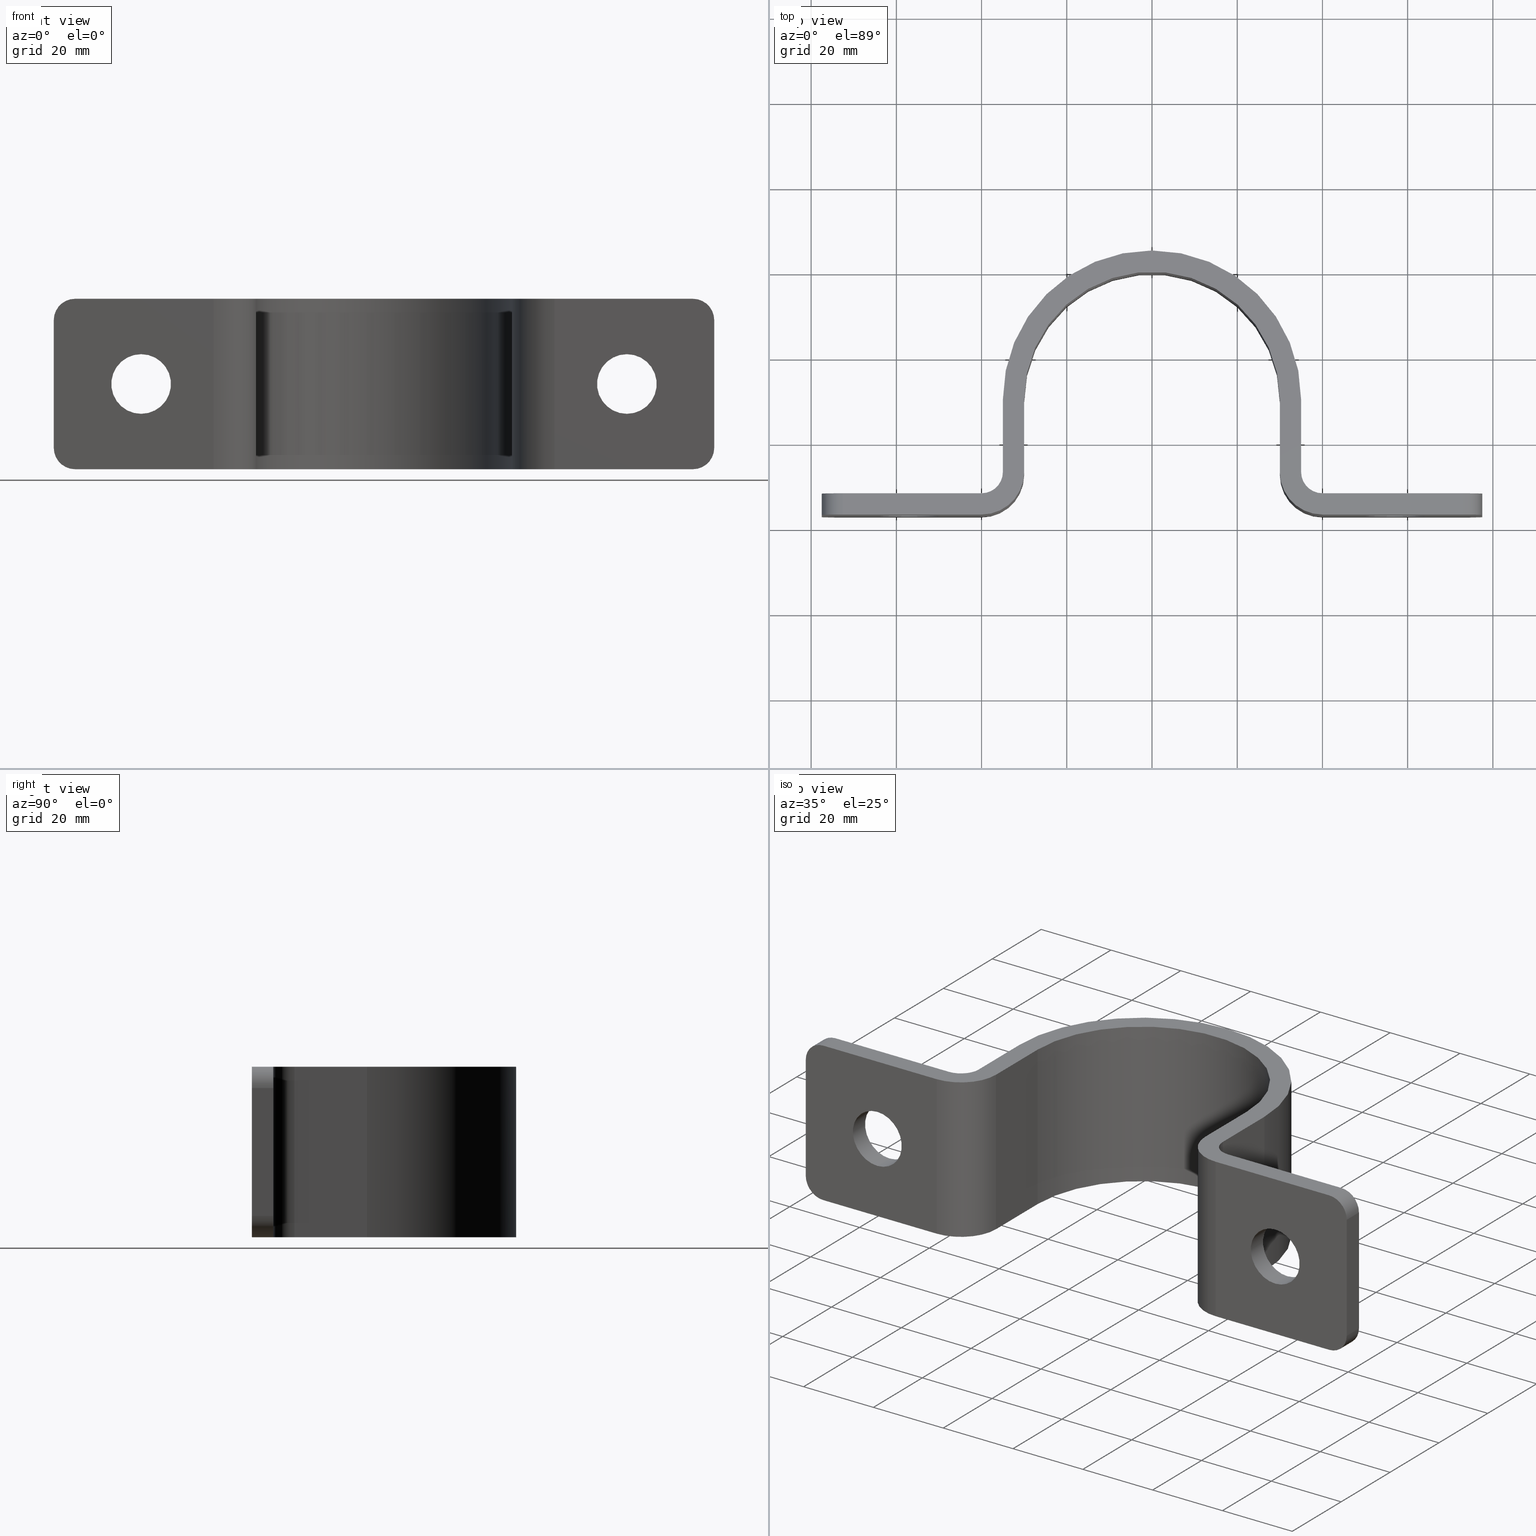
[diagram: canonical four-view strip — front | top / right | iso, engineering-drawing reading convention]
A machine part, canonical four-view strip (front | top / right | iso — engineering-drawing reading convention). The complete STEP part file that produces these views, byte-faithful:
ISO-10303-21;
HEADER;
FILE_DESCRIPTION (( 'STEP AP203' ),
    '1' );
FILE_NAME ('4229-30-40_REV_.step',
    '2026-01-09T02:52:07',
    ( '' ),
    ( '' ),
    'SwSTEP 2.0',
    'SolidWorks 2025',
    '' );
FILE_SCHEMA (( 'CONFIG_CONTROL_DESIGN' ));
ENDSEC;

DATA;
#1 = CARTESIAN_POINT ( 'NONE',  ( 72.50000000000000000, 3.000000000000017319, 20.00000000000000000 ) ) ;
#2 = CARTESIAN_POINT ( 'NONE',  ( -34.99999999999999289, 12.99999999999998046, 20.00000000000000000 ) ) ;
#3 = EDGE_LOOP ( 'NONE', ( #775, #889, #767, #941 ) ) ;
#4 = EDGE_CURVE ( 'NONE', #734, #502, #496, .T. ) ;
#5 = CARTESIAN_POINT ( 'NONE',  ( -57.00000000000000000, 7.999999999999984901, 0.000000000000000000 ) ) ;
#6 = LINE ( 'NONE', #1109, #302 ) ;
#7 = DIRECTION ( 'NONE',  ( 1.000000000000000000, 0.000000000000000000, 0.000000000000000000 ) ) ;
#8 = ORIENTED_EDGE ( 'NONE', *, *, #376, .F. ) ;
#9 = CARTESIAN_POINT ( 'NONE',  ( -72.49999999999998579, 2.999999999999975131, -20.00000000000000000 ) ) ;
#10 = AXIS2_PLACEMENT_3D ( 'NONE', #1037, #374, #870 ) ;
#11 = PLANE ( 'NONE',  #276 ) ;
#12 = CARTESIAN_POINT ( 'NONE',  ( 30.00000000000000000, 30.00000000000000355, -20.00000000000000000 ) ) ;
#13 = CARTESIAN_POINT ( 'NONE',  ( -57.00000000000000000, 7.999999999999984901, 6.999999999999995559 ) ) ;
#14 = AXIS2_PLACEMENT_3D ( 'NONE', #177, #506, #1029 ) ;
#15 = EDGE_LOOP ( 'NONE', ( #386, #359, #685, #879, #683, #221 ) ) ;
#16 = DIRECTION ( 'NONE',  ( -0.000000000000000000, 1.000000000000000000, -0.000000000000000000 ) ) ;
#17 = CARTESIAN_POINT ( 'NONE',  ( -57.00000000000000000, 2.999999999999973355, 0.000000000000000000 ) ) ;
#18 = ADVANCED_FACE ( 'NONE', ( #847 ), #231, .T. ) ;
#19 = DIRECTION ( 'NONE',  ( 0.000000000000000000, 0.000000000000000000, -1.000000000000000000 ) ) ;
#20 = FACE_OUTER_BOUND ( 'NONE', #1000, .T. ) ;
#21 = APPROVAL_ROLE ( '' ) ;
#22 = ORIENTED_EDGE ( 'NONE', *, *, #416, .F. ) ;
#23 = DIRECTION ( 'NONE',  ( 0.000000000000000000, 0.000000000000000000, 1.000000000000000000 ) ) ;
#24 = FACE_OUTER_BOUND ( 'NONE', #1062, .T. ) ;
#25 = CARTESIAN_POINT ( 'NONE',  ( -30.00000000000000000, 30.00000000000000000, -20.00000000000000000 ) ) ;
#26 = EDGE_CURVE ( 'NONE', #48, #1025, #674, .T. ) ;
#27 = APPROVAL_ROLE ( '' ) ;
#28 = EDGE_LOOP ( 'NONE', ( #559, #475, #657, #913 ) ) ;
#29 = CARTESIAN_POINT ( 'NONE',  ( -72.49999999999998579, 7.999999999999976019, -15.00000000000000000 ) ) ;
#30 = AXIS2_PLACEMENT_3D ( 'NONE', #1095, #929, #843 ) ;
#31 = DIRECTION ( 'NONE',  ( -0.000000000000000000, -0.000000000000000000, -1.000000000000000000 ) ) ;
#32 = AXIS2_PLACEMENT_3D ( 'NONE', #722, #1045, #544 ) ;
#33 = CARTESIAN_POINT ( 'NONE',  ( 40.00000000000000711, 7.999999999999989342, 20.00000000000000000 ) ) ;
#34 = LINE ( 'NONE', #291, #988 ) ;
#35 = ORIENTED_EDGE ( 'NONE', *, *, #846, .T. ) ;
#36 = EDGE_CURVE ( 'NONE', #731, #734, #617, .T. ) ;
#37 = EDGE_LOOP ( 'NONE', ( #553, #1086, #815, #129 ) ) ;
#38 = DIRECTION ( 'NONE',  ( 0.000000000000000000, 1.000000000000000000, -0.000000000000000000 ) ) ;
#39 = DIRECTION ( 'NONE',  ( 1.000000000000000000, 8.491014908728582820E-16, 0.000000000000000000 ) ) ;
#40 = CARTESIAN_POINT ( 'NONE',  ( -57.00000000000000000, 7.999999999999984901, 0.000000000000000000 ) ) ;
#41 = ORIENTED_EDGE ( 'NONE', *, *, #159, .F. ) ;
#42 = ORIENTED_EDGE ( 'NONE', *, *, #471, .F. ) ;
#43 = EDGE_CURVE ( 'NONE', #970, #158, #181, .T. ) ;
#44 = CARTESIAN_POINT ( 'NONE',  ( -40.00000000000000000, 7.999999999999979572, 20.00000000000000000 ) ) ;
#45 = CARTESIAN_POINT ( 'NONE',  ( 57.00000000000000000, 2.999999999999976463, -2.094146026541973873E-14 ) ) ;
#46 = ORIENTED_EDGE ( 'NONE', *, *, #914, .T. ) ;
#47 = DIRECTION ( 'NONE',  ( 1.000000000000000000, 0.000000000000000000, 0.000000000000000000 ) ) ;
#48 = VERTEX_POINT ( 'NONE', #403 ) ;
#49 = EDGE_CURVE ( 'NONE', #1085, #588, #223, .T. ) ;
#50 = CARTESIAN_POINT ( 'NONE',  ( 30.00000000000000000, 2.999999999999981348, -20.00000000000000000 ) ) ;
#51 = DIRECTION ( 'NONE',  ( -1.000000000000000000, 0.000000000000000000, 0.000000000000000000 ) ) ;
#52 = EDGE_LOOP ( 'NONE', ( #343, #655 ) ) ;
#53 = CIRCLE ( 'NONE', #947, 5.000000000000004441 ) ;
#54 = AXIS2_PLACEMENT_3D ( 'NONE', #732, #373, #793 ) ;
#55 = VERTEX_POINT ( 'NONE', #328 ) ;
#56 = CIRCLE ( 'NONE', #183, 4.999999999999997335 ) ;
#57 = EDGE_CURVE ( 'NONE', #1081, #366, #897, .T. ) ;
#58 = CARTESIAN_POINT ( 'NONE',  ( 30.00000000000000000, 30.00000000000000355, 20.00000000000000000 ) ) ;
#59 = VERTEX_POINT ( 'NONE', #1091 ) ;
#60 = DIRECTION ( 'NONE',  ( -0.000000000000000000, -0.000000000000000000, -1.000000000000000000 ) ) ;
#61 = ADVANCED_FACE ( 'NONE', ( #662 ), #830, .F. ) ;
#62 = ORIENTED_EDGE ( 'NONE', *, *, #834, .T. ) ;
#63 = VECTOR ( 'NONE', #1099, 1000.000000000000000 ) ;
#64 = ORIENTED_EDGE ( 'NONE', *, *, #980, .F. ) ;
#65 = CIRCLE ( 'NONE', #762, 30.00000000000000000 ) ;
#66 = PLANE ( 'NONE',  #781 ) ;
#67 = VERTEX_POINT ( 'NONE', #572 ) ;
#68 = CIRCLE ( 'NONE', #1108, 6.999999999999999112 ) ;
#69 = CARTESIAN_POINT ( 'NONE',  ( -40.00000000000000000, 2.999999999999980016, -20.00000000000000000 ) ) ;
#70 = CARTESIAN_POINT ( 'NONE',  ( -57.00000000000000000, 7.999999999999984901, 6.999999999999992006 ) ) ;
#71 = ORIENTED_EDGE ( 'NONE', *, *, #708, .T. ) ;
#72 = EDGE_CURVE ( 'NONE', #818, #457, #321, .T. ) ;
#73 = CARTESIAN_POINT ( 'NONE',  ( -40.00000000000000000, 12.99999999999998046, 20.00000000000000000 ) ) ;
#74 = DIRECTION ( 'NONE',  ( -1.000000000000000000, -1.734723475976805615E-16, 0.000000000000000000 ) ) ;
#75 = EDGE_LOOP ( 'NONE', ( #725, #630, #537, #1069 ) ) ;
#76 = PRODUCT_RELATED_PRODUCT_CATEGORY ( 'detail', '', ( #917 ) ) ;
#77 = CARTESIAN_POINT ( 'NONE',  ( -72.50000000000000000, 7.999999999999974243, 15.00000000000000000 ) ) ;
#78 = CARTESIAN_POINT ( 'NONE',  ( 40.00000000000000711, 7.999999999999989342, -20.00000000000000000 ) ) ;
#79 = ORIENTED_EDGE ( 'NONE', *, *, #1027, .F. ) ;
#80 = DIRECTION ( 'NONE',  ( 0.000000000000000000, 1.000000000000000000, 0.000000000000000000 ) ) ;
#81 = EDGE_CURVE ( 'NONE', #731, #133, #1087, .T. ) ;
#82 = ORIENTED_EDGE ( 'NONE', *, *, #314, .T. ) ;
#83 = DIRECTION ( 'NONE',  ( 0.000000000000000000, 1.000000000000000000, -0.000000000000000000 ) ) ;
#84 = CARTESIAN_POINT ( 'NONE',  ( 40.00000000000000711, 2.999999999999990230, -20.00000000000000000 ) ) ;
#85 = DIRECTION ( 'NONE',  ( 0.000000000000000000, 1.000000000000000000, 0.000000000000000000 ) ) ;
#86 = ORIENTED_EDGE ( 'NONE', *, *, #670, .F. ) ;
#87 = CARTESIAN_POINT ( 'NONE',  ( -72.50000000000000000, 2.999999999999975131, 20.00000000000000000 ) ) ;
#88 = PLANE ( 'NONE',  #150 ) ;
#89 = FACE_OUTER_BOUND ( 'NONE', #650, .T. ) ;
#90 = FACE_BOUND ( 'NONE', #304, .T. ) ;
#91 = PERSON_AND_ORGANIZATION ( #539, #237 ) ;
#92 = ORIENTED_EDGE ( 'NONE', *, *, #820, .T. ) ;
#93 = CARTESIAN_POINT ( 'NONE',  ( -30.00000000000000000, 12.99999999999998046, -20.00000000000000000 ) ) ;
#94 = EDGE_CURVE ( 'NONE', #334, #519, #751, .T. ) ;
#95 = CARTESIAN_POINT ( 'NONE',  ( 40.00000000000000000, 12.99999999999999112, -20.00000000000000000 ) ) ;
#96 = AXIS2_PLACEMENT_3D ( 'NONE', #939, #263, #607 ) ;
#97 = CARTESIAN_POINT ( 'NONE',  ( -34.99999999999999289, 12.99999999999998046, 20.00000000000000000 ) ) ;
#98 = CIRCLE ( 'NONE', #166, 4.999999999999997335 ) ;
#99 = SECURITY_CLASSIFICATION_LEVEL ( 'unclassified' ) ;
#100 = ORIENTED_EDGE ( 'NONE', *, *, #726, .T. ) ;
#101 = DIRECTION ( 'NONE',  ( -1.000000000000000000, 0.000000000000000000, 0.000000000000000000 ) ) ;
#102 = PLANE ( 'NONE',  #208 ) ;
#103 = EDGE_CURVE ( 'NONE', #760, #133, #1007, .T. ) ;
#104 = DIRECTION ( 'NONE',  ( -1.000000000000000000, 0.000000000000000000, 0.000000000000000000 ) ) ;
#105 = DIRECTION ( 'NONE',  ( 1.000000000000000000, 0.000000000000000000, 0.000000000000000000 ) ) ;
#106 = LINE ( 'NONE', #13, #716 ) ;
#107 = DATE_AND_TIME ( #886, #391 ) ;
#108 = ORIENTED_EDGE ( 'NONE', *, *, #942, .F. ) ;
#109 = DIRECTION ( 'NONE',  ( 0.000000000000000000, 0.000000000000000000, 1.000000000000000000 ) ) ;
#110 = ORIENTED_EDGE ( 'NONE', *, *, #946, .F. ) ;
#111 = CARTESIAN_POINT ( 'NONE',  ( -40.00000000000000000, 7.999999999999979572, 20.00000000000000000 ) ) ;
#112 = DIRECTION ( 'NONE',  ( 0.000000000000000000, 0.000000000000000000, 1.000000000000000000 ) ) ;
#113 = CARTESIAN_POINT ( 'NONE',  ( 34.99999999999999289, 30.00000000000000355, 20.00000000000000000 ) ) ;
#114 = DIRECTION ( 'NONE',  ( -8.491014908728582820E-16, 1.000000000000000000, 0.000000000000000000 ) ) ;
#115 = EDGE_CURVE ( 'NONE', #327, #260, #490, .T. ) ;
#116 = EDGE_LOOP ( 'NONE', ( #464, #555, #989, #578 ) ) ;
#117 = ORIENTED_EDGE ( 'NONE', *, *, #454, .F. ) ;
#118 = DIRECTION ( 'NONE',  ( -1.000000000000000000, 0.000000000000000000, 0.000000000000000000 ) ) ;
#119 = DIRECTION ( 'NONE',  ( -0.000000000000000000, -0.000000000000000000, -1.000000000000000000 ) ) ;
#120 = VECTOR ( 'NONE', #85, 1000.000000000000000 ) ;
#121 = DIRECTION ( 'NONE',  ( 0.000000000000000000, 1.000000000000000000, 0.000000000000000000 ) ) ;
#122 = LOCAL_TIME ( 13, 52, 7.000000000000000000, #636 ) ;
#123 = APPROVAL_STATUS ( 'not_yet_approved' ) ;
#124 = ORIENTED_EDGE ( 'NONE', *, *, #4, .T. ) ;
#125 = ADVANCED_FACE ( 'NONE', ( #747, #577 ), #581, .T. ) ;
#126 = ORIENTED_EDGE ( 'NONE', *, *, #512, .F. ) ;
#127 = ADVANCED_BREP_SHAPE_REPRESENTATION ( '4229-30-40_REV_', ( #831, #737 ), #990 ) ;
#128 = DIRECTION ( 'NONE',  ( 1.000000000000000000, 0.000000000000000000, -0.000000000000000000 ) ) ;
#129 = ORIENTED_EDGE ( 'NONE', *, *, #574, .T. ) ;
#130 = ORIENTED_EDGE ( 'NONE', *, *, #400, .F. ) ;
#131 = PLANE ( 'NONE',  #331 ) ;
#132 = DIRECTION ( 'NONE',  ( -0.000000000000000000, -0.000000000000000000, -1.000000000000000000 ) ) ;
#133 = VERTEX_POINT ( 'NONE', #69 ) ;
#134 = ORIENTED_EDGE ( 'NONE', *, *, #948, .F. ) ;
#135 = EDGE_CURVE ( 'NONE', #145, #797, #409, .T. ) ;
#136 = DIRECTION ( 'NONE',  ( -1.000000000000000000, -8.673617379884027583E-16, 0.000000000000000000 ) ) ;
#137 = AXIS2_PLACEMENT_3D ( 'NONE', #1060, #602, #635 ) ;
#138 = CARTESIAN_POINT ( 'NONE',  ( -57.00000000000000000, 7.999999999999984901, 0.000000000000000000 ) ) ;
#139 = CIRCLE ( 'NONE', #164, 5.000000000000004441 ) ;
#140 = ORIENTED_EDGE ( 'NONE', *, *, #94, .F. ) ;
#141 = CIRCLE ( 'NONE', #306, 10.00000000000000178 ) ;
#142 = ADVANCED_FACE ( 'NONE', ( #671 ), #1012, .F. ) ;
#143 = DIRECTION ( 'NONE',  ( -0.000000000000000000, 1.000000000000000000, -0.000000000000000000 ) ) ;
#144 = FACE_BOUND ( 'NONE', #448, .T. ) ;
#145 = VERTEX_POINT ( 'NONE', #961 ) ;
#146 = CARTESIAN_POINT ( 'NONE',  ( 72.50000000000000000, 3.000000000000018208, 15.00000000000000000 ) ) ;
#147 = DIRECTION ( 'NONE',  ( -1.460819769243627131E-16, 1.000000000000000000, 0.000000000000000000 ) ) ;
#148 = ORIENTED_EDGE ( 'NONE', *, *, #726, .F. ) ;
#149 = DIRECTION ( 'NONE',  ( 1.000000000000000000, 0.000000000000000000, -0.000000000000000000 ) ) ;
#150 = AXIS2_PLACEMENT_3D ( 'NONE', #599, #953, #960 ) ;
#151 = CARTESIAN_POINT ( 'NONE',  ( -72.50000000000000000, 2.999999999999975131, 15.00000000000000000 ) ) ;
#152 = ORIENTED_EDGE ( 'NONE', *, *, #1013, .F. ) ;
#153 = EDGE_CURVE ( 'NONE', #375, #1072, #1023, .T. ) ;
#154 = VECTOR ( 'NONE', #733, 1000.000000000000000 ) ;
#155 = DIRECTION ( 'NONE',  ( 1.000000000000000000, 0.000000000000000000, -0.000000000000000000 ) ) ;
#156 = ORIENTED_EDGE ( 'NONE', *, *, #335, .F. ) ;
#157 = CARTESIAN_POINT ( 'NONE',  ( 57.00000000000000000, 7.999999999999988454, -2.094146026541973873E-14 ) ) ;
#158 = VERTEX_POINT ( 'NONE', #1 ) ;
#159 = EDGE_CURVE ( 'NONE', #204, #620, #692, .T. ) ;
#160 = LINE ( 'NONE', #171, #478 ) ;
#161 = DIRECTION ( 'NONE',  ( 1.000000000000000000, 1.460819769243627131E-16, 0.000000000000000000 ) ) ;
#162 = AXIS2_PLACEMENT_3D ( 'NONE', #234, #155, #858 ) ;
#163 = ORIENTED_EDGE ( 'NONE', *, *, #465, .F. ) ;
#164 = AXIS2_PLACEMENT_3D ( 'NONE', #601, #869, #586 ) ;
#165 = DIRECTION ( 'NONE',  ( -1.000000000000000000, -6.938893903907222461E-16, 0.000000000000000000 ) ) ;
#166 = AXIS2_PLACEMENT_3D ( 'NONE', #518, #112, #355 ) ;
#167 = CARTESIAN_POINT ( 'NONE',  ( -30.00000000000000000, 12.99999999999998046, -20.00000000000000000 ) ) ;
#168 = DIRECTION ( 'NONE',  ( 0.000000000000000000, 0.000000000000000000, 1.000000000000000000 ) ) ;
#169 = ORIENTED_EDGE ( 'NONE', *, *, #354, .T. ) ;
#170 = DIRECTION ( 'NONE',  ( 1.000000000000000000, 0.000000000000000000, 0.000000000000000000 ) ) ;
#171 = CARTESIAN_POINT ( 'NONE',  ( 35.00000000000000000, 12.99999999999999112, 20.00000000000000000 ) ) ;
#172 = DIRECTION ( 'NONE',  ( 0.000000000000000000, -1.000000000000000000, 0.000000000000000000 ) ) ;
#173 = PERSON_AND_ORGANIZATION ( #539, #237 ) ;
#174 = ORIENTED_EDGE ( 'NONE', *, *, #541, .T. ) ;
#175 = CARTESIAN_POINT ( 'NONE',  ( 40.00000000000000000, 12.99999999999999112, 20.00000000000000000 ) ) ;
#176 = CARTESIAN_POINT ( 'NONE',  ( -77.50000000000000000, 2.999999999999974687, 15.00000000000000000 ) ) ;
#177 = CARTESIAN_POINT ( 'NONE',  ( -34.99999999999999289, 2.999999999999981348, 20.00000000000000000 ) ) ;
#178 = CARTESIAN_POINT ( 'NONE',  ( -30.00000000000000000, 12.99999999999998046, 20.00000000000000000 ) ) ;
#179 = EDGE_LOOP ( 'NONE', ( #958, #196, #267, #566 ) ) ;
#180 = FACE_OUTER_BOUND ( 'NONE', #545, .T. ) ;
#181 = CIRCLE ( 'NONE', #1056, 5.000000000000004441 ) ;
#182 = EDGE_CURVE ( 'NONE', #731, #663, #6, .T. ) ;
#183 = AXIS2_PLACEMENT_3D ( 'NONE', #324, #371, #298 ) ;
#184 = FACE_OUTER_BOUND ( 'NONE', #1021, .T. ) ;
#185 = AXIS2_PLACEMENT_3D ( 'NONE', #1088, #656, #47 ) ;
#186 = CIRCLE ( 'NONE', #645, 5.000000000000004441 ) ;
#187 = DIRECTION ( 'NONE',  ( -1.000000000000000000, 0.000000000000000000, 0.000000000000000000 ) ) ;
#188 = CARTESIAN_POINT ( 'NONE',  ( -40.00000000000000000, 7.999999999999979572, -20.00000000000000000 ) ) ;
#189 = ORIENTED_EDGE ( 'NONE', *, *, #795, .F. ) ;
#190 = CARTESIAN_POINT ( 'NONE',  ( 57.00000000000000000, 7.999999999999988454, -2.094146026541973873E-14 ) ) ;
#191 = AXIS2_PLACEMENT_3D ( 'NONE', #1032, #246, #1097 ) ;
#192 = ADVANCED_FACE ( 'NONE', ( #341 ), #337, .T. ) ;
#193 = EDGE_CURVE ( 'NONE', #1011, #334, #738, .T. ) ;
#194 = DIRECTION ( 'NONE',  ( -0.000000000000000000, 0.000000000000000000, -1.000000000000000000 ) ) ;
#195 = CARTESIAN_POINT ( 'NONE',  ( -30.00000000000000000, 2.999999999999981348, -20.00000000000000000 ) ) ;
#196 = ORIENTED_EDGE ( 'NONE', *, *, #505, .F. ) ;
#197 = ORIENTED_EDGE ( 'NONE', *, *, #926, .F. ) ;
#198 = ADVANCED_FACE ( 'NONE', ( #765 ), #439, .T. ) ;
#199 = DIRECTION ( 'NONE',  ( -0.000000000000000000, -0.000000000000000000, -1.000000000000000000 ) ) ;
#200 = LINE ( 'NONE', #1059, #969 ) ;
#201 = DIRECTION ( 'NONE',  ( 0.000000000000000000, -1.000000000000000000, 0.000000000000000000 ) ) ;
#202 = APPLICATION_PROTOCOL_DEFINITION ( 'international standard', 'config_control_design', 1994, #495 ) ;
#203 = EDGE_LOOP ( 'NONE', ( #597, #381, #212, #242 ) ) ;
#204 = VERTEX_POINT ( 'NONE', #249 ) ;
#205 = VECTOR ( 'NONE', #943, 1000.000000000000000 ) ;
#206 = PLANE ( 'NONE',  #332 ) ;
#207 = DIRECTION ( 'NONE',  ( -1.000000000000000000, 0.000000000000000000, 0.000000000000000000 ) ) ;
#208 = AXIS2_PLACEMENT_3D ( 'NONE', #443, #147, #565 ) ;
#209 = DIRECTION ( 'NONE',  ( 1.000000000000000000, 1.460819769243627131E-16, 0.000000000000000000 ) ) ;
#210 = APPROVAL ( #715, 'UNSPECIFIED' ) ;
#211 = AXIS2_PLACEMENT_3D ( 'NONE', #621, #605, #101 ) ;
#212 = ORIENTED_EDGE ( 'NONE', *, *, #43, .F. ) ;
#213 = ORIENTED_EDGE ( 'NONE', *, *, #589, .T. ) ;
#214 = DIRECTION ( 'NONE',  ( -0.000000000000000000, 1.000000000000000000, -0.000000000000000000 ) ) ;
#215 = CARTESIAN_POINT ( 'NONE',  ( 57.00000000000000000, 7.999999999999988454, -2.094146026541973873E-14 ) ) ;
#216 = ORIENTED_EDGE ( 'NONE', *, *, #159, .T. ) ;
#217 = EDGE_LOOP ( 'NONE', ( #152, #140, #865, #689 ) ) ;
#218 = ADVANCED_FACE ( 'NONE', ( #356 ), #511, .T. ) ;
#219 = DIRECTION ( 'NONE',  ( 0.000000000000000000, 0.000000000000000000, 1.000000000000000000 ) ) ;
#220 = ORIENTED_EDGE ( 'NONE', *, *, #81, .F. ) ;
#221 = ORIENTED_EDGE ( 'NONE', *, *, #838, .T. ) ;
#222 = EDGE_CURVE ( 'NONE', #789, #240, #160, .T. ) ;
#223 = LINE ( 'NONE', #485, #250 ) ;
#224 = APPROVAL_PERSON_ORGANIZATION ( #609, #520, #463 ) ;
#225 = DIRECTION ( 'NONE',  ( -1.000000000000000000, 0.000000000000000000, 0.000000000000000000 ) ) ;
#226 = CIRCLE ( 'NONE', #54, 34.99999999999999289 ) ;
#227 = EDGE_LOOP ( 'NONE', ( #236, #287, #592, #233 ) ) ;
#228 = DIRECTION ( 'NONE',  ( 0.000000000000000000, 0.000000000000000000, 1.000000000000000000 ) ) ;
#229 = ORIENTED_EDGE ( 'NONE', *, *, #698, .T. ) ;
#230 = ADVANCED_FACE ( 'NONE', ( #421 ), #595, .T. ) ;
#231 = PLANE ( 'NONE',  #274 ) ;
#232 = DIRECTION ( 'NONE',  ( 0.000000000000000000, -1.000000000000000000, 0.000000000000000000 ) ) ;
#233 = ORIENTED_EDGE ( 'NONE', *, *, #795, .T. ) ;
#234 = CARTESIAN_POINT ( 'NONE',  ( 30.00000000000000000, 30.00000000000000000, 20.00000000000000000 ) ) ;
#235 = CYLINDRICAL_SURFACE ( 'NONE', #279, 5.000000000000000888 ) ;
#236 = ORIENTED_EDGE ( 'NONE', *, *, #505, .T. ) ;
#237 = ORGANIZATION ( 'UNSPECIFIED', 'UNSPECIFIED', '' ) ;
#238 = AXIS2_PLACEMENT_3D ( 'NONE', #45, #214, #627 ) ;
#239 = VECTOR ( 'NONE', #557, 1000.000000000000000 ) ;
#240 = VERTEX_POINT ( 'NONE', #523 ) ;
#241 = LINE ( 'NONE', #1024, #904 ) ;
#242 = ORIENTED_EDGE ( 'NONE', *, *, #820, .F. ) ;
#243 = CARTESIAN_POINT ( 'NONE',  ( -77.50000000000000000, 2.999999999999975131, -15.00000000000000000 ) ) ;
#244 = CARTESIAN_POINT ( 'NONE',  ( -30.00000000000000000, 2.999999999999981348, 20.00000000000000000 ) ) ;
#245 = EDGE_LOOP ( 'NONE', ( #638, #573, #382, #1111 ) ) ;
#246 = DIRECTION ( 'NONE',  ( -0.000000000000000000, -0.000000000000000000, -1.000000000000000000 ) ) ;
#247 = EDGE_CURVE ( 'NONE', #285, #998, #768, .T. ) ;
#248 = CARTESIAN_POINT ( 'NONE',  ( -34.99999999999999289, 2.999999999999981348, 20.00000000000000000 ) ) ;
#249 = CARTESIAN_POINT ( 'NONE',  ( -77.50000000000000000, 7.999999999999974243, -15.00000000000000355 ) ) ;
#250 = VECTOR ( 'NONE', #1002, 1000.000000000000000 ) ;
#251 = DIRECTION ( 'NONE',  ( 1.000000000000000000, 0.000000000000000000, -0.000000000000000000 ) ) ;
#252 = ORIENTED_EDGE ( 'NONE', *, *, #49, .T. ) ;
#253 = VECTOR ( 'NONE', #882, 1000.000000000000000 ) ;
#254 = LOCAL_TIME ( 13, 52, 7.000000000000000000, #266 ) ;
#255 = VECTOR ( 'NONE', #132, 1000.000000000000000 ) ;
#256 = CARTESIAN_POINT ( 'NONE',  ( 0.000000000000000000, 30.00000000000000000, 20.00000000000000000 ) ) ;
#257 = DIRECTION ( 'NONE',  ( -1.000000000000000000, 0.000000000000000000, 0.000000000000000000 ) ) ;
#258 = CARTESIAN_POINT ( 'NONE',  ( 30.00000000000000000, 30.00000000000000000, -20.00000000000000000 ) ) ;
#259 = PERSON_AND_ORGANIZATION ( #539, #237 ) ;
#260 = VERTEX_POINT ( 'NONE', #12 ) ;
#261 = CARTESIAN_POINT ( 'NONE',  ( -77.50000000000000000, 2.999999999999974687, 20.00000000000000000 ) ) ;
#262 = CARTESIAN_POINT ( 'NONE',  ( -77.50000000000000000, 2.999999999999974687, 20.00000000000000000 ) ) ;
#263 = DIRECTION ( 'NONE',  ( -0.000000000000000000, 1.000000000000000000, -0.000000000000000000 ) ) ;
#264 = PLANE ( 'NONE',  #137 ) ;
#265 = EDGE_CURVE ( 'NONE', #457, #1085, #417, .T. ) ;
#266 = COORDINATED_UNIVERSAL_TIME_OFFSET ( 10, 0, .AHEAD. ) ;
#267 = ORIENTED_EDGE ( 'NONE', *, *, #997, .F. ) ;
#268 = CARTESIAN_POINT ( 'NONE',  ( 30.00000000000000000, 2.999999999999981348, 20.00000000000000000 ) ) ;
#269 = FACE_BOUND ( 'NONE', #52, .T. ) ;
#270 = PLANE ( 'NONE',  #556 ) ;
#271 = APPLICATION_PROTOCOL_DEFINITION ( 'international standard', 'config_control_design', 1994, #908 ) ;
#272 = ORIENTED_EDGE ( 'NONE', *, *, #72, .T. ) ;
#273 = FACE_OUTER_BOUND ( 'NONE', #564, .T. ) ;
#274 = AXIS2_PLACEMENT_3D ( 'NONE', #398, #575, #915 ) ;
#275 = VECTOR ( 'NONE', #868, 1000.000000000000000 ) ;
#276 = AXIS2_PLACEMENT_3D ( 'NONE', #613, #340, #522 ) ;
#277 = DESIGN_CONTEXT ( 'detailed design', #495, 'design' ) ;
#278 = CARTESIAN_POINT ( 'NONE',  ( 77.50000000000000000, 3.000000000000021760, 15.00000000000000000 ) ) ;
#279 = AXIS2_PLACEMENT_3D ( 'NONE', #587, #232, #930 ) ;
#280 = AXIS2_PLACEMENT_3D ( 'NONE', #981, #802, #194 ) ;
#281 = LOCAL_TIME ( 13, 52, 7.000000000000000000, #693 ) ;
#282 = DIRECTION ( 'NONE',  ( -0.000000000000000000, -0.000000000000000000, -1.000000000000000000 ) ) ;
#283 = LINE ( 'NONE', #899, #993 ) ;
#284 = APPROVAL_DATE_TIME ( #878, #394 ) ;
#285 = VERTEX_POINT ( 'NONE', #97 ) ;
#286 = VECTOR ( 'NONE', #339, 1000.000000000000000 ) ;
#287 = ORIENTED_EDGE ( 'NONE', *, *, #72, .F. ) ;
#288 = ADVANCED_FACE ( 'NONE', ( #426 ), #1036, .T. ) ;
#289 = CARTESIAN_POINT ( 'NONE',  ( -77.50000000000000000, 2.999999999999974687, -15.00000000000000355 ) ) ;
#290 = LINE ( 'NONE', #634, #906 ) ;
#291 = CARTESIAN_POINT ( 'NONE',  ( 77.50000000000000000, 8.000000000000021316, 15.00000000000000000 ) ) ;
#292 = ORIENTED_EDGE ( 'NONE', *, *, #416, .T. ) ;
#293 = ORIENTED_EDGE ( 'NONE', *, *, #396, .T. ) ;
#294 = FACE_OUTER_BOUND ( 'NONE', #179, .T. ) ;
#295 = DIRECTION ( 'NONE',  ( 0.000000000000000000, -1.000000000000000000, 0.000000000000000000 ) ) ;
#296 = ORIENTED_EDGE ( 'NONE', *, *, #424, .F. ) ;
#297 = ORIENTED_EDGE ( 'NONE', *, *, #654, .T. ) ;
#298 = DIRECTION ( 'NONE',  ( 1.000000000000000000, 0.000000000000000000, 0.000000000000000000 ) ) ;
#299 = VECTOR ( 'NONE', #295, 1000.000000000000000 ) ;
#300 = LINE ( 'NONE', #113, #1094 ) ;
#301 = FACE_OUTER_BOUND ( 'NONE', #245, .T. ) ;
#302 = VECTOR ( 'NONE', #80, 1000.000000000000000 ) ;
#303 = EDGE_CURVE ( 'NONE', #377, #588, #139, .T. ) ;
#304 = EDGE_LOOP ( 'NONE', ( #493, #1106 ) ) ;
#305 = ORIENTED_EDGE ( 'NONE', *, *, #335, .T. ) ;
#306 = AXIS2_PLACEMENT_3D ( 'NONE', #548, #542, #451 ) ;
#307 = DIRECTION ( 'NONE',  ( -1.000000000000000000, 0.000000000000000000, 0.000000000000000000 ) ) ;
#308 = ORIENTED_EDGE ( 'NONE', *, *, #467, .F. ) ;
#309 = ADVANCED_FACE ( 'NONE', ( #89 ), #1044, .F. ) ;
#310 = EDGE_LOOP ( 'NONE', ( #977, #905, #730, #319, #668, #46 ) ) ;
#311 = DIRECTION ( 'NONE',  ( -0.000000000000000000, -1.000000000000000000, 0.000000000000000000 ) ) ;
#312 = PRODUCT_DEFINITION ( 'UNKNOWN', '', #570, #277 ) ;
#313 = ORIENTED_EDGE ( 'NONE', *, *, #467, .T. ) ;
#314 = EDGE_CURVE ( 'NONE', #681, #782, #68, .T. ) ;
#315 = CIRCLE ( 'NONE', #1092, 4.999999999999997335 ) ;
#316 = DIRECTION ( 'NONE',  ( -0.000000000000000000, -0.000000000000000000, -1.000000000000000000 ) ) ;
#317 = CARTESIAN_POINT ( 'NONE',  ( -34.99999999999999289, 12.99999999999998046, -20.00000000000000000 ) ) ;
#318 = VECTOR ( 'NONE', #965, 1000.000000000000000 ) ;
#319 = ORIENTED_EDGE ( 'NONE', *, *, #387, .F. ) ;
#320 = ADVANCED_FACE ( 'NONE', ( #714 ), #884, .T. ) ;
#321 = LINE ( 'NONE', #833, #854 ) ;
#322 = CARTESIAN_POINT ( 'NONE',  ( 35.00000000000000000, 12.99999999999999112, -20.00000000000000000 ) ) ;
#323 = ORIENTED_EDGE ( 'NONE', *, *, #36, .F. ) ;
#324 = CARTESIAN_POINT ( 'NONE',  ( 40.00000000000000000, 12.99999999999999112, 20.00000000000000000 ) ) ;
#325 = DIRECTION ( 'NONE',  ( 1.000000000000000000, -6.938893903907232322E-16, 0.000000000000000000 ) ) ;
#326 = CARTESIAN_POINT ( 'NONE',  ( -57.00000000000000000, 2.999999999999973355, 6.999999999999999112 ) ) ;
#327 = VERTEX_POINT ( 'NONE', #911 ) ;
#328 = CARTESIAN_POINT ( 'NONE',  ( 34.99999999999999289, 30.00000000000000355, -20.00000000000000000 ) ) ;
#329 = CARTESIAN_POINT ( 'NONE',  ( 57.00000000000000000, 2.999999999999976463, -2.094146026541973873E-14 ) ) ;
#330 = EDGE_LOOP ( 'NONE', ( #252, #1089, #296, #1079 ) ) ;
#331 = AXIS2_PLACEMENT_3D ( 'NONE', #472, #821, #128 ) ;
#332 = AXIS2_PLACEMENT_3D ( 'NONE', #974, #104, #445 ) ;
#333 = DIRECTION ( 'NONE',  ( -0.000000000000000000, -0.000000000000000000, -1.000000000000000000 ) ) ;
#334 = VERTEX_POINT ( 'NONE', #994 ) ;
#335 = EDGE_CURVE ( 'NONE', #260, #55, #200, .T. ) ;
#336 = CYLINDRICAL_SURFACE ( 'NONE', #191, 30.00000000000000000 ) ;
#337 = CYLINDRICAL_SURFACE ( 'NONE', #678, 5.000000000000000888 ) ;
#338 = ORIENTED_EDGE ( 'NONE', *, *, #103, .T. ) ;
#339 = DIRECTION ( 'NONE',  ( 0.000000000000000000, -1.000000000000000000, 0.000000000000000000 ) ) ;
#340 = DIRECTION ( 'NONE',  ( 0.000000000000000000, 0.000000000000000000, 1.000000000000000000 ) ) ;
#341 = FACE_OUTER_BOUND ( 'NONE', #1040, .T. ) ;
#342 = DATE_TIME_ROLE ( 'creation_date' ) ;
#343 = ORIENTED_EDGE ( 'NONE', *, *, #57, .T. ) ;
#344 = CARTESIAN_POINT ( 'NONE',  ( -57.00000000000000000, 7.999999999999984901, 0.000000000000000000 ) ) ;
#345 = DIRECTION ( 'NONE',  ( -0.000000000000000000, 1.000000000000000000, 0.000000000000000000 ) ) ;
#346 = ADVANCED_FACE ( 'NONE', ( #721 ), #270, .T. ) ;
#347 = DIRECTION ( 'NONE',  ( 0.000000000000000000, -1.000000000000000000, 0.000000000000000000 ) ) ;
#348 = CYLINDRICAL_SURFACE ( 'NONE', #370, 6.999999999999995559 ) ;
#349 = CIRCLE ( 'NONE', #937, 10.00000000000000178 ) ;
#350 = CARTESIAN_POINT ( 'NONE',  ( 0.000000000000000000, 0.000000000000000000, 0.000000000000000000 ) ) ;
#351 = ORIENTED_EDGE ( 'NONE', *, *, #1035, .F. ) ;
#352 = CARTESIAN_POINT ( 'NONE',  ( 34.99999999999999289, 30.00000000000000000, -20.00000000000000000 ) ) ;
#353 = DIRECTION ( 'NONE',  ( -0.000000000000000000, 1.000000000000000000, -0.000000000000000000 ) ) ;
#354 = EDGE_CURVE ( 'NONE', #415, #789, #641, .T. ) ;
#355 = DIRECTION ( 'NONE',  ( 1.000000000000000000, 0.000000000000000000, 0.000000000000000000 ) ) ;
#356 = FACE_OUTER_BOUND ( 'NONE', #3, .T. ) ;
#357 = LINE ( 'NONE', #258, #476 ) ;
#358 = DATE_AND_TIME ( #440, #254 ) ;
#359 = ORIENTED_EDGE ( 'NONE', *, *, #471, .T. ) ;
#360 = DIRECTION ( 'NONE',  ( -0.000000000000000000, -0.000000000000000000, 1.000000000000000000 ) ) ;
#361 = CYLINDRICAL_SURFACE ( 'NONE', #675, 5.000000000000000888 ) ;
#362 = DIRECTION ( 'NONE',  ( -0.000000000000000000, -0.000000000000000000, -1.000000000000000000 ) ) ;
#363 = DIRECTION ( 'NONE',  ( -0.000000000000000000, -0.000000000000000000, -1.000000000000000000 ) ) ;
#364 = DIRECTION ( 'NONE',  ( -0.000000000000000000, 1.000000000000000000, -0.000000000000000000 ) ) ;
#365 = CALENDAR_DATE ( 2026, 9, 1 ) ;
#366 = VERTEX_POINT ( 'NONE', #549 ) ;
#367 = CARTESIAN_POINT ( 'NONE',  ( 30.00000000000000000, 30.00000000000000000, 20.00000000000000000 ) ) ;
#368 = EDGE_CURVE ( 'NONE', #1011, #204, #283, .T. ) ;
#369 = VECTOR ( 'NONE', #311, 1000.000000000000000 ) ;
#370 = AXIS2_PLACEMENT_3D ( 'NONE', #40, #975, #885 ) ;
#371 = DIRECTION ( 'NONE',  ( 0.000000000000000000, 0.000000000000000000, 1.000000000000000000 ) ) ;
#372 = AXIS2_PLACEMENT_3D ( 'NONE', #77, #787, #591 ) ;
#373 = DIRECTION ( 'NONE',  ( -0.000000000000000000, -0.000000000000000000, -1.000000000000000000 ) ) ;
#374 = DIRECTION ( 'NONE',  ( 1.460819769243627131E-16, -1.000000000000000000, -0.000000000000000000 ) ) ;
#375 = VERTEX_POINT ( 'NONE', #33 ) ;
#376 = EDGE_CURVE ( 'NONE', #415, #55, #300, .T. ) ;
#377 = VERTEX_POINT ( 'NONE', #384 ) ;
#378 = LINE ( 'NONE', #640, #239 ) ;
#379 = PLANE ( 'NONE',  #532 ) ;
#380 = CARTESIAN_POINT ( 'NONE',  ( -34.99999999999999289, 12.99999999999998046, 20.00000000000000000 ) ) ;
#381 = ORIENTED_EDGE ( 'NONE', *, *, #938, .F. ) ;
#382 = ORIENTED_EDGE ( 'NONE', *, *, #594, .T. ) ;
#383 = LINE ( 'NONE', #1075, #286 ) ;
#384 = CARTESIAN_POINT ( 'NONE',  ( 77.50000000000000000, 8.000000000000021316, -15.00000000000000355 ) ) ;
#385 = ORIENTED_EDGE ( 'NONE', *, *, #867, .F. ) ;
#386 = ORIENTED_EDGE ( 'NONE', *, *, #834, .F. ) ;
#387 = EDGE_CURVE ( 'NONE', #375, #1085, #452, .T. ) ;
#388 = LINE ( 'NONE', #50, #1061 ) ;
#389 = CARTESIAN_POINT ( 'NONE',  ( 72.50000000000000000, 3.000000000000018208, -15.00000000000000000 ) ) ;
#390 = AXIS2_PLACEMENT_3D ( 'NONE', #344, #695, #888 ) ;
#391 = LOCAL_TIME ( 13, 52, 7.000000000000000000, #976 ) ;
#392 = ORIENTED_EDGE ( 'NONE', *, *, #600, .F. ) ;
#393 = VERTEX_POINT ( 'NONE', #811 ) ;
#394 = APPROVAL ( #526, 'UNSPECIFIED' ) ;
#395 = DIRECTION ( 'NONE',  ( -1.000000000000000000, -8.673617379884027583E-16, 0.000000000000000000 ) ) ;
#396 = EDGE_CURVE ( 'NONE', #984, #610, #1017, .T. ) ;
#397 = ORIENTED_EDGE ( 'NONE', *, *, #182, .F. ) ;
#398 = CARTESIAN_POINT ( 'NONE',  ( -34.99999999999999289, 30.00000000000000355, -20.00000000000000000 ) ) ;
#399 = ORIENTED_EDGE ( 'NONE', *, *, #867, .T. ) ;
#400 = EDGE_CURVE ( 'NONE', #393, #415, #226, .T. ) ;
#401 = AXIS2_PLACEMENT_3D ( 'NONE', #744, #666, #149 ) ;
#402 = AXIS2_PLACEMENT_3D ( 'NONE', #951, #168, #251 ) ;
#403 = CARTESIAN_POINT ( 'NONE',  ( -57.00000000000000000, 7.999999999999984901, -6.999999999999992006 ) ) ;
#404 = CARTESIAN_POINT ( 'NONE',  ( 30.00000000000000000, 2.999999999999981348, 20.00000000000000000 ) ) ;
#405 = CIRCLE ( 'NONE', #437, 5.000000000000004441 ) ;
#406 = EDGE_LOOP ( 'NONE', ( #563, #813, #86, #1004 ) ) ;
#407 = CC_DESIGN_PERSON_AND_ORGANIZATION_ASSIGNMENT ( #517, #709, ( #570 ) ) ;
#408 = FACE_OUTER_BOUND ( 'NONE', #1015, .T. ) ;
#409 = LINE ( 'NONE', #754, #658 ) ;
#410 = DIRECTION ( 'NONE',  ( -0.000000000000000000, 0.000000000000000000, -1.000000000000000000 ) ) ;
#411 = ORIENTED_EDGE ( 'NONE', *, *, #585, .F. ) ;
#412 = ADVANCED_FACE ( 'NONE', ( #562 ), #131, .T. ) ;
#413 = DIRECTION ( 'NONE',  ( -0.000000000000000000, -0.000000000000000000, -1.000000000000000000 ) ) ;
#414 = FACE_OUTER_BOUND ( 'NONE', #330, .T. ) ;
#415 = VERTEX_POINT ( 'NONE', #1065 ) ;
#416 = EDGE_CURVE ( 'NONE', #487, #797, #290, .T. ) ;
#417 = LINE ( 'NONE', #84, #661 ) ;
#418 = VECTOR ( 'NONE', #450, 1000.000000000000000 ) ;
#419 = EDGE_LOOP ( 'NONE', ( #992, #351, #717, #752 ) ) ;
#420 = VECTOR ( 'NONE', #1071, 1000.000000000000000 ) ;
#421 = FACE_OUTER_BOUND ( 'NONE', #419, .T. ) ;
#422 = DIRECTION ( 'NONE',  ( 0.000000000000000000, 0.000000000000000000, 1.000000000000000000 ) ) ;
#423 = VERTEX_POINT ( 'NONE', #907 ) ;
#424 = EDGE_CURVE ( 'NONE', #457, #456, #388, .T. ) ;
#425 = ORIENTED_EDGE ( 'NONE', *, *, #1027, .T. ) ;
#426 = FACE_OUTER_BOUND ( 'NONE', #227, .T. ) ;
#427 = LINE ( 'NONE', #680, #920 ) ;
#428 = ORIENTED_EDGE ( 'NONE', *, *, #43, .T. ) ;
#429 = DIRECTION ( 'NONE',  ( 0.000000000000000000, 0.000000000000000000, 1.000000000000000000 ) ) ;
#430 = ADVANCED_FACE ( 'NONE', ( #986 ), #379, .F. ) ;
#431 = LINE ( 'NONE', #691, #253 ) ;
#432 = DIRECTION ( 'NONE',  ( -0.000000000000000000, -0.000000000000000000, -1.000000000000000000 ) ) ;
#433 = CARTESIAN_POINT ( 'NONE',  ( 30.00000000000000000, 12.99999999999999112, 20.00000000000000000 ) ) ;
#434 = DIRECTION ( 'NONE',  ( 0.000000000000000000, 0.000000000000000000, 1.000000000000000000 ) ) ;
#435 = VERTEX_POINT ( 'NONE', #728 ) ;
#436 = CARTESIAN_POINT ( 'NONE',  ( 40.00000000000000000, 12.99999999999999112, -20.00000000000000000 ) ) ;
#437 = AXIS2_PLACEMENT_3D ( 'NONE', #389, #1084, #136 ) ;
#438 = DIRECTION ( 'NONE',  ( -0.000000000000000000, -0.000000000000000000, -1.000000000000000000 ) ) ;
#439 = PLANE ( 'NONE',  #14 ) ;
#440 = CALENDAR_DATE ( 2026, 9, 1 ) ;
#441 = ORIENTED_EDGE ( 'NONE', *, *, #856, .T. ) ;
#442 = DIRECTION ( 'NONE',  ( -0.000000000000000000, -0.000000000000000000, -1.000000000000000000 ) ) ;
#443 = CARTESIAN_POINT ( 'NONE',  ( -77.50000000000000000, 2.999999999999974687, 20.00000000000000000 ) ) ;
#444 = ADVANCED_FACE ( 'NONE', ( #294 ), #1076, .T. ) ;
#445 = DIRECTION ( 'NONE',  ( 0.000000000000000000, 0.000000000000000000, 1.000000000000000000 ) ) ;
#446 = CARTESIAN_POINT ( 'NONE',  ( 40.00000000000000711, 7.999999999999989342, 20.00000000000000000 ) ) ;
#447 = CARTESIAN_POINT ( 'NONE',  ( 29.99999999999999645, 7.999999999999981348, 20.00000000000000000 ) ) ;
#448 = EDGE_LOOP ( 'NONE', ( #293, #425 ) ) ;
#449 = LINE ( 'NONE', #798, #255 ) ;
#450 = DIRECTION ( 'NONE',  ( -0.000000000000000000, -0.000000000000000000, -1.000000000000000000 ) ) ;
#451 = DIRECTION ( 'NONE',  ( -1.000000000000000000, 0.000000000000000000, 0.000000000000000000 ) ) ;
#452 = LINE ( 'NONE', #446, #420 ) ;
#453 = DIRECTION ( 'NONE',  ( -0.000000000000000000, -0.000000000000000000, -1.000000000000000000 ) ) ;
#454 = EDGE_CURVE ( 'NONE', #797, #260, #696, .T. ) ;
#455 = PERSON_AND_ORGANIZATION_ROLE ( 'classification_officer' ) ;
#456 = VERTEX_POINT ( 'NONE', #529 ) ;
#457 = VERTEX_POINT ( 'NONE', #995 ) ;
#458 = VECTOR ( 'NONE', #209, 1000.000000000000000 ) ;
#459 = AXIS2_PLACEMENT_3D ( 'NONE', #687, #347, #863 ) ;
#460 = LINE ( 'NONE', #810, #1083 ) ;
#461 = DIRECTION ( 'NONE',  ( 0.000000000000000000, 0.000000000000000000, 1.000000000000000000 ) ) ;
#462 = CARTESIAN_POINT ( 'NONE',  ( -40.00000000000000000, 2.999999999999980016, 20.00000000000000000 ) ) ;
#463 = APPROVAL_ROLE ( '' ) ;
#464 = ORIENTED_EDGE ( 'NONE', *, *, #1102, .F. ) ;
#465 = EDGE_CURVE ( 'NONE', #528, #133, #521, .T. ) ;
#466 = EDGE_LOOP ( 'NONE', ( #156, #117, #673, #561 ) ) ;
#467 = EDGE_CURVE ( 'NONE', #55, #240, #880, .T. ) ;
#468 = CARTESIAN_POINT ( 'NONE',  ( 34.99999999999999289, 30.00000000000000355, 20.00000000000000000 ) ) ;
#469 = EDGE_LOOP ( 'NONE', ( #832, #216, #110, #297 ) ) ;
#470 = ORIENTED_EDGE ( 'NONE', *, *, #222, .T. ) ;
#471 = EDGE_CURVE ( 'NONE', #59, #204, #186, .T. ) ;
#472 = CARTESIAN_POINT ( 'NONE',  ( 40.00000000000000711, 7.999999999999989342, 20.00000000000000000 ) ) ;
#473 = DIRECTION ( 'NONE',  ( -0.000000000000000000, 1.000000000000000000, -0.000000000000000000 ) ) ;
#474 = ORIENTED_EDGE ( 'NONE', *, *, #57, .F. ) ;
#475 = ORIENTED_EDGE ( 'NONE', *, *, #814, .T. ) ;
#476 = VECTOR ( 'NONE', #172, 1000.000000000000000 ) ;
#477 = CIRCLE ( 'NONE', #718, 6.999999999999999112 ) ;
#478 = VECTOR ( 'NONE', #1050, 1000.000000000000000 ) ;
#479 = CARTESIAN_POINT ( 'NONE',  ( -72.50000000000000000, 12.99999999999998046, 20.00000000000000000 ) ) ;
#480 = ORIENTED_EDGE ( 'NONE', *, *, #786, .F. ) ;
#481 = ADVANCED_FACE ( 'NONE', ( #180 ), #1077, .F. ) ;
#482 = DIRECTION ( 'NONE',  ( -0.000000000000000000, -0.000000000000000000, -1.000000000000000000 ) ) ;
#483 = PRODUCT_DEFINITION_SHAPE ( 'NONE', 'NONE',  #312 ) ;
#484 = ORIENTED_EDGE ( 'NONE', *, *, #708, .F. ) ;
#485 = CARTESIAN_POINT ( 'NONE',  ( 29.99999999999999645, 7.999999999999981348, -20.00000000000000000 ) ) ;
#486 = FACE_OUTER_BOUND ( 'NONE', #584, .T. ) ;
#487 = VERTEX_POINT ( 'NONE', #514 ) ;
#488 = CIRCLE ( 'NONE', #10, 5.000000000000004441 ) ;
#489 = VECTOR ( 'NONE', #785, 1000.000000000000000 ) ;
#490 = LINE ( 'NONE', #58, #504 ) ;
#491 = PLANE ( 'NONE',  #764 ) ;
#492 = VECTOR ( 'NONE', #333, 1000.000000000000000 ) ;
#493 = ORIENTED_EDGE ( 'NONE', *, *, #574, .F. ) ;
#494 = EDGE_CURVE ( 'NONE', #818, #158, #651, .T. ) ;
#495 = APPLICATION_CONTEXT ( 'configuration controlled 3d designs of mechanical parts and assemblies' ) ;
#496 = LINE ( 'NONE', #1009, #525 ) ;
#497 = LINE ( 'NONE', #774, #1107 ) ;
#498 = ORIENTED_EDGE ( 'NONE', *, *, #766, .T. ) ;
#499 = ADVANCED_FACE ( 'NONE', ( #872 ), #912, .F. ) ;
#500 = DIRECTION ( 'NONE',  ( -0.000000000000000000, 1.000000000000000000, -0.000000000000000000 ) ) ;
#501 =( LENGTH_UNIT ( ) NAMED_UNIT ( * ) SI_UNIT ( .MILLI., .METRE. ) );
#502 = VERTEX_POINT ( 'NONE', #93 ) ;
#503 = CC_DESIGN_DATE_AND_TIME_ASSIGNMENT ( #107, #1039, ( #660 ) ) ;
#504 = VECTOR ( 'NONE', #60, 1000.000000000000000 ) ;
#505 = EDGE_CURVE ( 'NONE', #423, #457, #842, .T. ) ;
#506 = DIRECTION ( 'NONE',  ( -1.000000000000000000, -0.000000000000000000, 0.000000000000000000 ) ) ;
#507 = VECTOR ( 'NONE', #121, 1000.000000000000000 ) ;
#508 = VECTOR ( 'NONE', #161, 1000.000000000000000 ) ;
#509 = DIRECTION ( 'NONE',  ( -1.000000000000000000, -8.491014908728582820E-16, 0.000000000000000000 ) ) ;
#510 = ORIENTED_EDGE ( 'NONE', *, *, #222, .F. ) ;
#511 = PLANE ( 'NONE',  #1038 ) ;
#512 = EDGE_CURVE ( 'NONE', #519, #731, #703, .T. ) ;
#513 = ORIENTED_EDGE ( 'NONE', *, *, #938, .T. ) ;
#514 = CARTESIAN_POINT ( 'NONE',  ( -30.00000000000000000, 30.00000000000000000, 20.00000000000000000 ) ) ;
#515 = DIRECTION ( 'NONE',  ( 0.000000000000000000, 1.000000000000000000, 0.000000000000000000 ) ) ;
#516 = CARTESIAN_POINT ( 'NONE',  ( 57.00000000000000000, 7.999999999999988454, -7.000000000000020428 ) ) ;
#517 = PERSON_AND_ORGANIZATION ( #539, #237 ) ;
#518 = CARTESIAN_POINT ( 'NONE',  ( -40.00000000000000000, 12.99999999999998046, 20.00000000000000000 ) ) ;
#519 = VERTEX_POINT ( 'NONE', #87 ) ;
#520 = APPROVAL ( #123, 'UNSPECIFIED' ) ;
#521 = LINE ( 'NONE', #999, #809 ) ;
#522 = DIRECTION ( 'NONE',  ( 1.000000000000000000, 0.000000000000000000, -0.000000000000000000 ) ) ;
#523 = CARTESIAN_POINT ( 'NONE',  ( 35.00000000000000000, 12.99999999999999112, -20.00000000000000000 ) ) ;
#524 = DIRECTION ( 'NONE',  ( 1.000000000000000000, 0.000000000000000000, 0.000000000000000000 ) ) ;
#525 = VECTOR ( 'NONE', #316, 1000.000000000000000 ) ;
#526 = APPROVAL_STATUS ( 'not_yet_approved' ) ;
#527 = CARTESIAN_POINT ( 'NONE',  ( -40.00000000000000000, 2.999999999999980016, 20.00000000000000000 ) ) ;
#528 = VERTEX_POINT ( 'NONE', #9 ) ;
#529 = CARTESIAN_POINT ( 'NONE',  ( 72.50000000000000000, 3.000000000000017319, -20.00000000000000000 ) ) ;
#530 = AXIS2_PLACEMENT_3D ( 'NONE', #447, #114, #700 ) ;
#531 = VECTOR ( 'NONE', #688, 1000.000000000000000 ) ;
#532 = AXIS2_PLACEMENT_3D ( 'NONE', #739, #207, #558 ) ;
#533 = LINE ( 'NONE', #606, #489 ) ;
#534 = FACE_OUTER_BOUND ( 'NONE', #469, .T. ) ;
#535 = CARTESIAN_POINT ( 'NONE',  ( 0.000000000000000000, 30.00000000000000000, -20.00000000000000000 ) ) ;
#536 = DIRECTION ( 'NONE',  ( -0.000000000000000000, 1.000000000000000000, -0.000000000000000000 ) ) ;
#537 = ORIENTED_EDGE ( 'NONE', *, *, #659, .T. ) ;
#538 = CYLINDRICAL_SURFACE ( 'NONE', #390, 6.999999999999995559 ) ;
#539 = PERSON ( 'UNSPECIFIED', 'UNSPECIFIED', 'UNSPECIFIED', ('UNSPECIFIED'), ('UNSPECIFIED'), ('UNSPECIFIED') ) ;
#540 = DIRECTION ( 'NONE',  ( -8.491014908728582820E-16, 1.000000000000000000, 0.000000000000000000 ) ) ;
#541 = EDGE_CURVE ( 'NONE', #327, #67, #1048, .T. ) ;
#542 = DIRECTION ( 'NONE',  ( -0.000000000000000000, -0.000000000000000000, 1.000000000000000000 ) ) ;
#543 = DIRECTION ( 'NONE',  ( -0.000000000000000000, -1.000000000000000000, 0.000000000000000000 ) ) ;
#544 = DIRECTION ( 'NONE',  ( -0.000000000000000000, 0.000000000000000000, -1.000000000000000000 ) ) ;
#545 = EDGE_LOOP ( 'NONE', ( #808, #510, #229, #1031 ) ) ;
#546 = ORIENTED_EDGE ( 'NONE', *, *, #36, .T. ) ;
#547 = CC_DESIGN_DATE_AND_TIME_ASSIGNMENT ( #552, #342, ( #312 ) ) ;
#548 = CARTESIAN_POINT ( 'NONE',  ( 40.00000000000000000, 12.99999999999999112, 20.00000000000000000 ) ) ;
#549 = CARTESIAN_POINT ( 'NONE',  ( -57.00000000000000000, 2.999999999999973355, -6.999999999999999112 ) ) ;
#550 = LINE ( 'NONE', #900, #299 ) ;
#551 = ADVANCED_FACE ( 'NONE', ( #1041 ), #959, .T. ) ;
#552 = DATE_AND_TIME ( #957, #122 ) ;
#553 = ORIENTED_EDGE ( 'NONE', *, *, #745, .F. ) ;
#554 = VECTOR ( 'NONE', #482, 1000.000000000000000 ) ;
#555 = ORIENTED_EDGE ( 'NONE', *, *, #94, .T. ) ;
#556 = AXIS2_PLACEMENT_3D ( 'NONE', #468, #461, #646 ) ;
#557 = DIRECTION ( 'NONE',  ( -0.000000000000000000, 1.000000000000000000, 0.000000000000000000 ) ) ;
#558 = DIRECTION ( 'NONE',  ( 0.000000000000000000, 0.000000000000000000, 1.000000000000000000 ) ) ;
#559 = ORIENTED_EDGE ( 'NONE', *, *, #956, .F. ) ;
#560 = ADVANCED_FACE ( 'NONE', ( #301 ), #783, .F. ) ;
#561 = ORIENTED_EDGE ( 'NONE', *, *, #980, .T. ) ;
#562 = FACE_OUTER_BOUND ( 'NONE', #894, .T. ) ;
#563 = ORIENTED_EDGE ( 'NONE', *, *, #846, .F. ) ;
#564 = EDGE_LOOP ( 'NONE', ( #1068, #474, #928, #399 ) ) ;
#565 = DIRECTION ( 'NONE',  ( -1.000000000000000000, -1.460819769243627131E-16, 0.000000000000000000 ) ) ;
#566 = ORIENTED_EDGE ( 'NONE', *, *, #873, .T. ) ;
#567 = AXIS2_PLACEMENT_3D ( 'NONE', #924, #143, #228 ) ;
#568 = VECTOR ( 'NONE', #712, 1000.000000000000000 ) ;
#569 = ADVANCED_FACE ( 'NONE', ( #273 ), #538, .F. ) ;
#570 = PRODUCT_DEFINITION_FORMATION_WITH_SPECIFIED_SOURCE ( 'ANY', '', #917, .NOT_KNOWN. ) ;
#571 = AXIS2_PLACEMENT_3D ( 'NONE', #535, #442, #51 ) ;
#572 = CARTESIAN_POINT ( 'NONE',  ( 30.00000000000000000, 12.99999999999999112, 20.00000000000000000 ) ) ;
#573 = ORIENTED_EDGE ( 'NONE', *, *, #838, .F. ) ;
#574 = EDGE_CURVE ( 'NONE', #782, #681, #933, .T. ) ;
#575 = DIRECTION ( 'NONE',  ( -0.000000000000000000, 0.000000000000000000, -1.000000000000000000 ) ) ;
#576 = ORIENTED_EDGE ( 'NONE', *, *, #648, .T. ) ;
#577 = FACE_OUTER_BOUND ( 'NONE', #15, .T. ) ;
#578 = ORIENTED_EDGE ( 'NONE', *, *, #182, .T. ) ;
#579 = CIRCLE ( 'NONE', #902, 5.000000000000004441 ) ;
#580 = VECTOR ( 'NONE', #225, 1000.000000000000000 ) ;
#581 = PLANE ( 'NONE',  #30 ) ;
#582 = AXIS2_PLACEMENT_3D ( 'NONE', #706, #432, #257 ) ;
#583 = DIRECTION ( 'NONE',  ( -0.000000000000000000, 1.000000000000000000, -0.000000000000000000 ) ) ;
#584 = EDGE_LOOP ( 'NONE', ( #1053, #213, #392, #428, #748, #272 ) ) ;
#585 = EDGE_CURVE ( 'NONE', #853, #377, #449, .T. ) ;
#586 = DIRECTION ( 'NONE',  ( -1.000000000000000000, -6.938893903907222461E-16, 0.000000000000000000 ) ) ;
#587 = CARTESIAN_POINT ( 'NONE',  ( 72.50000000000000000, 8.000000000000021316, 15.00000000000000000 ) ) ;
#588 = VERTEX_POINT ( 'NONE', #822 ) ;
#589 = EDGE_CURVE ( 'NONE', #456, #435, #405, .T. ) ;
#590 = ADVANCED_FACE ( 'NONE', ( #408 ), #669, .T. ) ;
#591 = DIRECTION ( 'NONE',  ( -1.000000000000000000, 0.000000000000000000, 0.000000000000000000 ) ) ;
#592 = ORIENTED_EDGE ( 'NONE', *, *, #639, .F. ) ;
#593 = LINE ( 'NONE', #262, #568 ) ;
#594 = EDGE_CURVE ( 'NONE', #663, #285, #98, .T. ) ;
#595 = CYLINDRICAL_SURFACE ( 'NONE', #459, 5.000000000000000888 ) ;
#596 = LINE ( 'NONE', #1030, #508 ) ;
#597 = ORIENTED_EDGE ( 'NONE', *, *, #914, .F. ) ;
#598 = AXIS2_PLACEMENT_3D ( 'NONE', #175, #429, #776 ) ;
#599 = CARTESIAN_POINT ( 'NONE',  ( -40.00000000000000000, 7.999999999999979572, -20.00000000000000000 ) ) ;
#600 = EDGE_CURVE ( 'NONE', #970, #435, #633, .T. ) ;
#601 = CARTESIAN_POINT ( 'NONE',  ( 72.50000000000000000, 8.000000000000017764, -15.00000000000000000 ) ) ;
#602 = DIRECTION ( 'NONE',  ( -0.000000000000000000, 0.000000000000000000, -1.000000000000000000 ) ) ;
#603 = MECHANICAL_CONTEXT ( 'NONE', #908, 'mechanical' ) ;
#604 = ORIENTED_EDGE ( 'NONE', *, *, #376, .T. ) ;
#605 = DIRECTION ( 'NONE',  ( -0.000000000000000000, -0.000000000000000000, -1.000000000000000000 ) ) ;
#606 = CARTESIAN_POINT ( 'NONE',  ( -30.00000000000000000, 30.00000000000000000, 20.00000000000000000 ) ) ;
#607 = DIRECTION ( 'NONE',  ( 0.000000000000000000, 0.000000000000000000, 1.000000000000000000 ) ) ;
#608 = LINE ( 'NONE', #955, #1078 ) ;
#609 = PERSON_AND_ORGANIZATION ( #539, #237 ) ;
#610 = VERTEX_POINT ( 'NONE', #626 ) ;
#611 = DIRECTION ( 'NONE',  ( -0.000000000000000000, -1.000000000000000000, 0.000000000000000000 ) ) ;
#612 = ADVANCED_FACE ( 'NONE', ( #713 ), #1058, .T. ) ;
#613 = CARTESIAN_POINT ( 'NONE',  ( -30.00000000000000000, 30.00000000000000000, 20.00000000000000000 ) ) ;
#614 = CYLINDRICAL_SURFACE ( 'NONE', #664, 10.00000000000000178 ) ;
#615 = CARTESIAN_POINT ( 'NONE',  ( 40.00000000000000711, 2.999999999999990230, -20.00000000000000000 ) ) ;
#616 = PLANE ( 'NONE',  #530 ) ;
#617 = CIRCLE ( 'NONE', #1105, 10.00000000000000178 ) ;
#618 = SHAPE_DEFINITION_REPRESENTATION ( #483, #127 ) ;
#619 = DIRECTION ( 'NONE',  ( 1.000000000000000000, 0.000000000000000000, -0.000000000000000000 ) ) ;
#620 = VERTEX_POINT ( 'NONE', #289 ) ;
#621 = CARTESIAN_POINT ( 'NONE',  ( 40.00000000000000000, 12.99999999999999112, 20.00000000000000000 ) ) ;
#622 = VECTOR ( 'NONE', #453, 1000.000000000000000 ) ;
#623 = ADVANCED_FACE ( 'NONE', ( #705 ), #614, .T. ) ;
#624 = VECTOR ( 'NONE', #949, 1000.000000000000000 ) ;
#625 = LINE ( 'NONE', #111, #418 ) ;
#626 = CARTESIAN_POINT ( 'NONE',  ( 57.00000000000000000, 2.999999999999976463, -7.000000000000020428 ) ) ;
#627 = DIRECTION ( 'NONE',  ( 0.000000000000000000, 0.000000000000000000, 1.000000000000000000 ) ) ;
#628 = FACE_OUTER_BOUND ( 'NONE', #466, .T. ) ;
#629 = PERSON_AND_ORGANIZATION ( #539, #237 ) ;
#630 = ORIENTED_EDGE ( 'NONE', *, *, #1090, .T. ) ;
#631 = EDGE_LOOP ( 'NONE', ( #964, #642, #108, #845 ) ) ;
#632 = ADVANCED_FACE ( 'NONE', ( #534 ), #206, .T. ) ;
#633 = LINE ( 'NONE', #816, #1042 ) ;
#634 = CARTESIAN_POINT ( 'NONE',  ( -30.00000000000000000, 30.00000000000000000, 20.00000000000000000 ) ) ;
#635 = DIRECTION ( 'NONE',  ( -1.000000000000000000, 0.000000000000000000, 0.000000000000000000 ) ) ;
#636 = COORDINATED_UNIVERSAL_TIME_OFFSET ( 10, 0, .AHEAD. ) ;
#637 = ORIENTED_EDGE ( 'NONE', *, *, #26, .F. ) ;
#638 = ORIENTED_EDGE ( 'NONE', *, *, #719, .F. ) ;
#639 = EDGE_CURVE ( 'NONE', #67, #818, #141, .T. ) ;
#640 = CARTESIAN_POINT ( 'NONE',  ( -34.99999999999999289, 2.999999999999981348, -20.00000000000000000 ) ) ;
#641 = LINE ( 'NONE', #892, #922 ) ;
#642 = ORIENTED_EDGE ( 'NONE', *, *, #948, .T. ) ;
#643 = EDGE_LOOP ( 'NONE', ( #576, #952, #323, #743 ) ) ;
#644 = VECTOR ( 'NONE', #364, 1000.000000000000000 ) ;
#645 = AXIS2_PLACEMENT_3D ( 'NONE', #29, #740, #307 ) ;
#646 = DIRECTION ( 'NONE',  ( 1.000000000000000000, 0.000000000000000000, -0.000000000000000000 ) ) ;
#647 = DIRECTION ( 'NONE',  ( -1.000000000000000000, 0.000000000000000000, 0.000000000000000000 ) ) ;
#648 = EDGE_CURVE ( 'NONE', #133, #502, #349, .T. ) ;
#649 = AXIS2_PLACEMENT_3D ( 'NONE', #727, #282, #883 ) ;
#650 = EDGE_LOOP ( 'NONE', ( #79, #931, #82, #1073 ) ) ;
#651 = LINE ( 'NONE', #268, #154 ) ;
#652 = EDGE_LOOP ( 'NONE', ( #163, #71, #62, #338 ) ) ;
#653 = ORIENTED_EDGE ( 'NONE', *, *, #1035, .T. ) ;
#654 = EDGE_CURVE ( 'NONE', #903, #1011, #460, .T. ) ;
#655 = ORIENTED_EDGE ( 'NONE', *, *, #956, .T. ) ;
#656 = DIRECTION ( 'NONE',  ( -0.000000000000000000, -0.000000000000000000, -1.000000000000000000 ) ) ;
#657 = ORIENTED_EDGE ( 'NONE', *, *, #26, .T. ) ;
#658 = VECTOR ( 'NONE', #325, 1000.000000000000000 ) ;
#659 = EDGE_CURVE ( 'NONE', #998, #145, #378, .T. ) ;
#660 = SECURITY_CLASSIFICATION ( '', '', #99 ) ;
#661 = VECTOR ( 'NONE', #515, 1000.000000000000000 ) ;
#662 = FACE_OUTER_BOUND ( 'NONE', #652, .T. ) ;
#663 = VERTEX_POINT ( 'NONE', #44 ) ;
#664 = AXIS2_PLACEMENT_3D ( 'NONE', #1070, #199, #891 ) ;
#665 = CC_DESIGN_PERSON_AND_ORGANIZATION_ASSIGNMENT ( #629, #983, ( #917 ) ) ;
#666 = DIRECTION ( 'NONE',  ( 0.000000000000000000, 0.000000000000000000, 1.000000000000000000 ) ) ;
#667 = FACE_OUTER_BOUND ( 'NONE', #203, .T. ) ;
#668 = ORIENTED_EDGE ( 'NONE', *, *, #153, .T. ) ;
#669 = PLANE ( 'NONE',  #1080 ) ;
#670 = EDGE_CURVE ( 'NONE', #375, #818, #383, .T. ) ;
#671 = FACE_OUTER_BOUND ( 'NONE', #925, .T. ) ;
#672 = CARTESIAN_POINT ( 'NONE',  ( -30.00000000000000000, 12.99999999999998046, -20.00000000000000000 ) ) ;
#673 = ORIENTED_EDGE ( 'NONE', *, *, #135, .F. ) ;
#674 = CIRCLE ( 'NONE', #916, 6.999999999999992006 ) ;
#675 = AXIS2_PLACEMENT_3D ( 'NONE', #862, #83, #1028 ) ;
#676 = LOCAL_TIME ( 13, 52, 7.000000000000000000, #796 ) ;
#677 = DIRECTION ( 'NONE',  ( -0.000000000000000000, 1.000000000000000000, -0.000000000000000000 ) ) ;
#678 = AXIS2_PLACEMENT_3D ( 'NONE', #773, #779, #19 ) ;
#679 = CC_DESIGN_PERSON_AND_ORGANIZATION_ASSIGNMENT ( #173, #1067, ( #570 ) ) ;
#680 = CARTESIAN_POINT ( 'NONE',  ( 34.99999999999999289, 30.00000000000000355, 20.00000000000000000 ) ) ;
#681 = VERTEX_POINT ( 'NONE', #1112 ) ;
#682 = CARTESIAN_POINT ( 'NONE',  ( 29.99999999999999645, 7.999999999999981348, 20.00000000000000000 ) ) ;
#683 = ORIENTED_EDGE ( 'NONE', *, *, #1102, .T. ) ;
#684 = ADVANCED_FACE ( 'NONE', ( #690 ), #336, .F. ) ;
#685 = ORIENTED_EDGE ( 'NONE', *, *, #368, .F. ) ;
#686 = CARTESIAN_POINT ( 'NONE',  ( 72.50000000000000000, 8.000000000000017764, 15.00000000000000000 ) ) ;
#687 = CARTESIAN_POINT ( 'NONE',  ( 72.50000000000000000, 12.99999999999999112, -15.00000000000000000 ) ) ;
#688 = DIRECTION ( 'NONE',  ( -1.000000000000000000, 0.000000000000000000, 0.000000000000000000 ) ) ;
#689 = ORIENTED_EDGE ( 'NONE', *, *, #654, .F. ) ;
#690 = FACE_OUTER_BOUND ( 'NONE', #805, .T. ) ;
#691 = CARTESIAN_POINT ( 'NONE',  ( 30.00000000000000000, 12.99999999999999112, 20.00000000000000000 ) ) ;
#692 = LINE ( 'NONE', #243, #624 ) ;
#693 = COORDINATED_UNIVERSAL_TIME_OFFSET ( 10, 0, .AHEAD. ) ;
#694 = ORIENTED_EDGE ( 'NONE', *, *, #400, .T. ) ;
#695 = DIRECTION ( 'NONE',  ( -0.000000000000000000, 1.000000000000000000, -0.000000000000000000 ) ) ;
#696 = CIRCLE ( 'NONE', #571, 30.00000000000000000 ) ;
#697 = DIRECTION ( 'NONE',  ( -0.000000000000000000, 1.000000000000000000, -0.000000000000000000 ) ) ;
#698 = EDGE_CURVE ( 'NONE', #789, #375, #56, .T. ) ;
#699 = DIRECTION ( 'NONE',  ( -1.000000000000000000, 0.000000000000000000, 0.000000000000000000 ) ) ;
#700 = DIRECTION ( 'NONE',  ( -1.000000000000000000, -8.491014908728582820E-16, 0.000000000000000000 ) ) ;
#701 = PERSON_AND_ORGANIZATION ( #539, #237 ) ;
#702 = ORIENTED_EDGE ( 'NONE', *, *, #997, .T. ) ;
#703 = LINE ( 'NONE', #261, #318 ) ;
#704 = DIRECTION ( 'NONE',  ( 0.000000000000000000, 0.000000000000000000, 1.000000000000000000 ) ) ;
#705 = FACE_OUTER_BOUND ( 'NONE', #643, .T. ) ;
#706 = CARTESIAN_POINT ( 'NONE',  ( 40.00000000000000000, 12.99999999999999112, 20.00000000000000000 ) ) ;
#707 = PLANE ( 'NONE',  #32 ) ;
#708 = EDGE_CURVE ( 'NONE', #528, #59, #1082, .T. ) ;
#709 = PERSON_AND_ORGANIZATION_ROLE ( 'creator' ) ;
#710 = ORIENTED_EDGE ( 'NONE', *, *, #856, .F. ) ;
#711 = CARTESIAN_POINT ( 'NONE',  ( -40.00000000000000000, 12.99999999999998046, 20.00000000000000000 ) ) ;
#712 = DIRECTION ( 'NONE',  ( -0.000000000000000000, -0.000000000000000000, -1.000000000000000000 ) ) ;
#713 = FACE_OUTER_BOUND ( 'NONE', #819, .T. ) ;
#714 = FACE_OUTER_BOUND ( 'NONE', #887, .T. ) ;
#715 = APPROVAL_STATUS ( 'not_yet_approved' ) ;
#716 = VECTOR ( 'NONE', #536, 1000.000000000000000 ) ;
#717 = ORIENTED_EDGE ( 'NONE', *, *, #589, .F. ) ;
#718 = AXIS2_PLACEMENT_3D ( 'NONE', #17, #353, #704 ) ;
#719 = EDGE_CURVE ( 'NONE', #760, #998, #839, .T. ) ;
#720 = VECTOR ( 'NONE', #611, 1000.000000000000000 ) ;
#721 = FACE_OUTER_BOUND ( 'NONE', #631, .T. ) ;
#722 = CARTESIAN_POINT ( 'NONE',  ( 34.99999999999999289, 30.00000000000000000, 20.00000000000000000 ) ) ;
#723 = PERSON_AND_ORGANIZATION ( #539, #237 ) ;
#724 = ORIENTED_EDGE ( 'NONE', *, *, #454, .T. ) ;
#725 = ORIENTED_EDGE ( 'NONE', *, *, #766, .F. ) ;
#726 = EDGE_CURVE ( 'NONE', #620, #528, #488, .T. ) ;
#727 = CARTESIAN_POINT ( 'NONE',  ( 0.000000000000000000, 30.00000000000000000, 20.00000000000000000 ) ) ;
#728 = CARTESIAN_POINT ( 'NONE',  ( 77.50000000000000000, 3.000000000000021760, -15.00000000000000355 ) ) ;
#729 = LINE ( 'NONE', #987, #458 ) ;
#730 = ORIENTED_EDGE ( 'NONE', *, *, #49, .F. ) ;
#731 = VERTEX_POINT ( 'NONE', #462 ) ;
#732 = CARTESIAN_POINT ( 'NONE',  ( 0.000000000000000000, 30.00000000000000000, 20.00000000000000000 ) ) ;
#733 = DIRECTION ( 'NONE',  ( 1.000000000000000000, 8.491014908728582820E-16, 0.000000000000000000 ) ) ;
#734 = VERTEX_POINT ( 'NONE', #178 ) ;
#735 = CARTESIAN_POINT ( 'NONE',  ( 35.00000000000000000, 12.99999999999999112, -20.00000000000000000 ) ) ;
#736 = ORIENTED_EDGE ( 'NONE', *, *, #659, .F. ) ;
#737 = AXIS2_PLACEMENT_3D ( 'NONE', #350, #434, #7 ) ;
#738 = CIRCLE ( 'NONE', #372, 5.000000000000004441 ) ;
#739 = CARTESIAN_POINT ( 'NONE',  ( -30.00000000000000000, 2.999999999999981348, 20.00000000000000000 ) ) ;
#740 = DIRECTION ( 'NONE',  ( -1.460819769243627131E-16, 1.000000000000000000, 0.000000000000000000 ) ) ;
#741 = EDGE_CURVE ( 'NONE', #1081, #1025, #106, .T. ) ;
#742 = ORIENTED_EDGE ( 'NONE', *, *, #115, .F. ) ;
#743 = ORIENTED_EDGE ( 'NONE', *, *, #81, .T. ) ;
#744 = CARTESIAN_POINT ( 'NONE',  ( 40.00000000000000000, 12.99999999999999112, -20.00000000000000000 ) ) ;
#745 = EDGE_CURVE ( 'NONE', #610, #681, #982, .T. ) ;
#746 = ORIENTED_EDGE ( 'NONE', *, *, #1013, .T. ) ;
#747 = FACE_BOUND ( 'NONE', #996, .T. ) ;
#748 = ORIENTED_EDGE ( 'NONE', *, *, #494, .F. ) ;
#749 = APPROVAL_PERSON_ORGANIZATION ( #259, #210, #21 ) ;
#750 = AXIS2_PLACEMENT_3D ( 'NONE', #215, #16, #109 ) ;
#751 = LINE ( 'NONE', #479, #369 ) ;
#752 = ORIENTED_EDGE ( 'NONE', *, *, #829, .F. ) ;
#753 = ADVANCED_FACE ( 'NONE', ( #968 ), #348, .F. ) ;
#754 = CARTESIAN_POINT ( 'NONE',  ( -34.99999999999999289, 30.00000000000000355, -20.00000000000000000 ) ) ;
#755 = DIRECTION ( 'NONE',  ( -1.000000000000000000, 0.000000000000000000, 0.000000000000000000 ) ) ;
#756 = ORIENTED_EDGE ( 'NONE', *, *, #594, .F. ) ;
#757 = CC_DESIGN_PERSON_AND_ORGANIZATION_ASSIGNMENT ( #723, #963, ( #312 ) ) ;
#758 = DIRECTION ( 'NONE',  ( 0.000000000000000000, 0.000000000000000000, 1.000000000000000000 ) ) ;
#759 = DIRECTION ( 'NONE',  ( -0.000000000000000000, 1.000000000000000000, -0.000000000000000000 ) ) ;
#760 = VERTEX_POINT ( 'NONE', #188 ) ;
#761 = CLOSED_SHELL ( 'NONE', ( #753, #309, #890, #346, #806, #18, #590, #1074, #218, #850, #1113, #412, #444, #1026, #1006, #320, #792, #481, #777, #612, #198, #560, #125, #632, #972, #623, #430, #684, #142, #288, #551, #61, #499, #569, #230, #1055, #192, #923 ) ) ;
#762 = AXIS2_PLACEMENT_3D ( 'NONE', #256, #438, #791 ) ;
#763 = VECTOR ( 'NONE', #31, 1000.000000000000000 ) ;
#764 = AXIS2_PLACEMENT_3D ( 'NONE', #322, #410, #755 ) ;
#765 = FACE_OUTER_BOUND ( 'NONE', #936, .T. ) ;
#766 = EDGE_CURVE ( 'NONE', #502, #797, #812, .T. ) ;
#767 = ORIENTED_EDGE ( 'NONE', *, *, #103, .F. ) ;
#768 = LINE ( 'NONE', #875, #492 ) ;
#769 = FACE_OUTER_BOUND ( 'NONE', #116, .T. ) ;
#770 = ORIENTED_EDGE ( 'NONE', *, *, #247, .F. ) ;
#771 = EDGE_CURVE ( 'NONE', #285, #734, #876, .T. ) ;
#772 = CARTESIAN_POINT ( 'NONE',  ( 77.50000000000000000, 8.000000000000021316, 15.00000000000000000 ) ) ;
#773 = CARTESIAN_POINT ( 'NONE',  ( -72.49999999999998579, 12.99999999999999112, -15.00000000000000000 ) ) ;
#774 = CARTESIAN_POINT ( 'NONE',  ( 77.50000000000000000, 8.000000000000021316, -15.00000000000000355 ) ) ;
#775 = ORIENTED_EDGE ( 'NONE', *, *, #1090, .F. ) ;
#776 = DIRECTION ( 'NONE',  ( 1.000000000000000000, 0.000000000000000000, -0.000000000000000000 ) ) ;
#777 = ADVANCED_FACE ( 'NONE', ( #20 ), #707, .T. ) ;
#778 = LINE ( 'NONE', #248, #918 ) ;
#779 = DIRECTION ( 'NONE',  ( 0.000000000000000000, -1.000000000000000000, 0.000000000000000000 ) ) ;
#780 = DIRECTION ( 'NONE',  ( 1.000000000000000000, 0.000000000000000000, 0.000000000000000000 ) ) ;
#781 = AXIS2_PLACEMENT_3D ( 'NONE', #404, #991, #509 ) ;
#782 = VERTEX_POINT ( 'NONE', #893 ) ;
#783 = CYLINDRICAL_SURFACE ( 'NONE', #827, 4.999999999999997335 ) ;
#784 = AXIS2_PLACEMENT_3D ( 'NONE', #615, #967, #187 ) ;
#785 = DIRECTION ( 'NONE',  ( -1.000000000000000000, 6.938893903907232322E-16, 0.000000000000000000 ) ) ;
#786 = EDGE_CURVE ( 'NONE', #260, #423, #357, .T. ) ;
#787 = DIRECTION ( 'NONE',  ( -1.460819769243627131E-16, 1.000000000000000000, 0.000000000000000000 ) ) ;
#788 = DATE_AND_TIME ( #365, #281 ) ;
#789 = VERTEX_POINT ( 'NONE', #1066 ) ;
#790 = DIRECTION ( 'NONE',  ( 1.000000000000000000, 1.460819769243627131E-16, 0.000000000000000000 ) ) ;
#791 = DIRECTION ( 'NONE',  ( -1.000000000000000000, 0.000000000000000000, 0.000000000000000000 ) ) ;
#792 = ADVANCED_FACE ( 'NONE', ( #90, #1051 ), #616, .T. ) ;
#793 = DIRECTION ( 'NONE',  ( 1.000000000000000000, 0.000000000000000000, 0.000000000000000000 ) ) ;
#794 = LINE ( 'NONE', #433, #622 ) ;
#795 = EDGE_CURVE ( 'NONE', #67, #423, #794, .T. ) ;
#796 = COORDINATED_UNIVERSAL_TIME_OFFSET ( 10, 0, .AHEAD. ) ;
#797 = VERTEX_POINT ( 'NONE', #25 ) ;
#798 = CARTESIAN_POINT ( 'NONE',  ( 77.50000000000000000, 8.000000000000021316, 20.00000000000000000 ) ) ;
#799 = ORIENTED_EDGE ( 'NONE', *, *, #771, .F. ) ;
#800 = CARTESIAN_POINT ( 'NONE',  ( -34.99999999999999289, 30.00000000000000355, 20.00000000000000000 ) ) ;
#801 = CARTESIAN_POINT ( 'NONE',  ( -40.00000000000000000, 12.99999999999998046, -20.00000000000000000 ) ) ;
#802 = DIRECTION ( 'NONE',  ( 1.000000000000000000, 0.000000000000000000, -0.000000000000000000 ) ) ;
#803 = DIRECTION ( 'NONE',  ( -0.000000000000000000, 1.000000000000000000, -0.000000000000000000 ) ) ;
#804 = CIRCLE ( 'NONE', #932, 6.999999999999992006 ) ;
#805 = EDGE_LOOP ( 'NONE', ( #724, #742, #197, #292 ) ) ;
#806 = ADVANCED_FACE ( 'NONE', ( #628 ), #264, .T. ) ;
#807 = CIRCLE ( 'NONE', #185, 34.99999999999999289 ) ;
#808 = ORIENTED_EDGE ( 'NONE', *, *, #873, .F. ) ;
#809 = VECTOR ( 'NONE', #790, 1000.000000000000000 ) ;
#810 = CARTESIAN_POINT ( 'NONE',  ( -77.50000000000000000, 2.999999999999974687, 15.00000000000000000 ) ) ;
#811 = CARTESIAN_POINT ( 'NONE',  ( -34.99999999999999289, 30.00000000000000355, 20.00000000000000000 ) ) ;
#812 = LINE ( 'NONE', #195, #507 ) ;
#813 = ORIENTED_EDGE ( 'NONE', *, *, #639, .T. ) ;
#814 = EDGE_CURVE ( 'NONE', #366, #48, #608, .T. ) ;
#815 = ORIENTED_EDGE ( 'NONE', *, *, #1098, .T. ) ;
#816 = CARTESIAN_POINT ( 'NONE',  ( 77.50000000000000000, 3.000000000000021760, 20.00000000000000000 ) ) ;
#817 = DIRECTION ( 'NONE',  ( -0.000000000000000000, -0.000000000000000000, -1.000000000000000000 ) ) ;
#818 = VERTEX_POINT ( 'NONE', #962 ) ;
#819 = EDGE_LOOP ( 'NONE', ( #64, #710, #694, #604 ) ) ;
#820 = EDGE_CURVE ( 'NONE', #853, #970, #34, .T. ) ;
#821 = DIRECTION ( 'NONE',  ( 0.000000000000000000, 0.000000000000000000, 1.000000000000000000 ) ) ;
#822 = CARTESIAN_POINT ( 'NONE',  ( 72.50000000000000000, 8.000000000000017764, -20.00000000000000000 ) ) ;
#823 = ORIENTED_EDGE ( 'NONE', *, *, #153, .F. ) ;
#824 = ORIENTED_EDGE ( 'NONE', *, *, #465, .T. ) ;
#825 = VECTOR ( 'NONE', #524, 1000.000000000000000 ) ;
#826 = CC_DESIGN_APPROVAL ( #394, ( #312 ) ) ;
#827 = AXIS2_PLACEMENT_3D ( 'NONE', #711, #1054, #647 ) ;
#828 = CC_DESIGN_APPROVAL ( #210, ( #660 ) ) ;
#829 = EDGE_CURVE ( 'NONE', #588, #456, #550, .T. ) ;
#830 = PLANE ( 'NONE',  #401 ) ;
#831 = MANIFOLD_SOLID_BREP ( 'Fillet1', #761 ) ;
#832 = ORIENTED_EDGE ( 'NONE', *, *, #368, .T. ) ;
#833 = CARTESIAN_POINT ( 'NONE',  ( 40.00000000000000711, 2.999999999999990230, 20.00000000000000000 ) ) ;
#834 = EDGE_CURVE ( 'NONE', #59, #760, #729, .T. ) ;
#835 = ORIENTED_EDGE ( 'NONE', *, *, #926, .T. ) ;
#836 = DIRECTION ( 'NONE',  ( -0.000000000000000000, -0.000000000000000000, 1.000000000000000000 ) ) ;
#837 = ORIENTED_EDGE ( 'NONE', *, *, #1063, .F. ) ;
#838 = EDGE_CURVE ( 'NONE', #663, #760, #625, .T. ) ;
#839 = CIRCLE ( 'NONE', #1016, 4.999999999999997335 ) ;
#840 = AXIS2_PLACEMENT_3D ( 'NONE', #2, #935, #1019 ) ;
#841 = CC_DESIGN_APPROVAL ( #520, ( #570 ) ) ;
#842 = CIRCLE ( 'NONE', #1005, 10.00000000000000178 ) ;
#843 = DIRECTION ( 'NONE',  ( -1.000000000000000000, -1.460819769243627131E-16, 0.000000000000000000 ) ) ;
#844 = CARTESIAN_POINT ( 'NONE',  ( 72.50000000000000000, 8.000000000000017764, 20.00000000000000000 ) ) ;
#845 = ORIENTED_EDGE ( 'NONE', *, *, #771, .T. ) ;
#846 = EDGE_CURVE ( 'NONE', #67, #789, #431, .T. ) ;
#847 = FACE_OUTER_BOUND ( 'NONE', #1101, .T. ) ;
#848 = LINE ( 'NONE', #672, #531 ) ;
#849 = ORIENTED_EDGE ( 'NONE', *, *, #115, .T. ) ;
#850 = ADVANCED_FACE ( 'NONE', ( #1057 ), #88, .T. ) ;
#851 = DIRECTION ( 'NONE',  ( 0.000000000000000000, 0.000000000000000000, 1.000000000000000000 ) ) ;
#852 = DIRECTION ( 'NONE',  ( -0.000000000000000000, 1.000000000000000000, -0.000000000000000000 ) ) ;
#853 = VERTEX_POINT ( 'NONE', #772 ) ;
#854 = VECTOR ( 'NONE', #413, 1000.000000000000000 ) ;
#855 = CIRCLE ( 'NONE', #921, 6.999999999999999112 ) ;
#856 = EDGE_CURVE ( 'NONE', #393, #145, #966, .T. ) ;
#857 = CC_DESIGN_SECURITY_CLASSIFICATION ( #660, ( #570 ) ) ;
#858 = DIRECTION ( 'NONE',  ( -0.000000000000000000, 0.000000000000000000, -1.000000000000000000 ) ) ;
#859 = AXIS2_PLACEMENT_3D ( 'NONE', #190, #473, #23 ) ;
#860 = DIRECTION ( 'NONE',  ( -1.000000000000000000, 0.000000000000000000, 0.000000000000000000 ) ) ;
#861 = ORIENTED_EDGE ( 'NONE', *, *, #600, .T. ) ;
#862 = CARTESIAN_POINT ( 'NONE',  ( -72.50000000000000000, 2.999999999999974687, 15.00000000000000000 ) ) ;
#863 = DIRECTION ( 'NONE',  ( 0.000000000000000000, 0.000000000000000000, -1.000000000000000000 ) ) ;
#864 = LINE ( 'NONE', #244, #120 ) ;
#865 = ORIENTED_EDGE ( 'NONE', *, *, #193, .F. ) ;
#866 = DIRECTION ( 'NONE',  ( -1.000000000000000000, 0.000000000000000000, 0.000000000000000000 ) ) ;
#867 = EDGE_CURVE ( 'NONE', #1025, #48, #804, .T. ) ;
#868 = DIRECTION ( 'NONE',  ( -0.000000000000000000, 1.000000000000000000, -0.000000000000000000 ) ) ;
#869 = DIRECTION ( 'NONE',  ( -8.491014908728582820E-16, 1.000000000000000000, 0.000000000000000000 ) ) ;
#870 = DIRECTION ( 'NONE',  ( -1.000000000000000000, -1.734723475976805615E-16, -1.040834085586083271E-15 ) ) ;
#871 = EDGE_LOOP ( 'NONE', ( #978, #513, #823, #895 ) ) ;
#872 = FACE_OUTER_BOUND ( 'NONE', #37, .T. ) ;
#873 = EDGE_CURVE ( 'NONE', #240, #1085, #315, .T. ) ;
#874 = LINE ( 'NONE', #1034, #275 ) ;
#875 = CARTESIAN_POINT ( 'NONE',  ( -34.99999999999999289, 12.99999999999998046, 20.00000000000000000 ) ) ;
#876 = LINE ( 'NONE', #380, #825 ) ;
#877 = APPROVAL_PERSON_ORGANIZATION ( #701, #394, #27 ) ;
#878 = DATE_AND_TIME ( #901, #676 ) ;
#879 = ORIENTED_EDGE ( 'NONE', *, *, #193, .T. ) ;
#880 = LINE ( 'NONE', #352, #720 ) ;
#881 = UNCERTAINTY_MEASURE_WITH_UNIT (LENGTH_MEASURE( 1.000000000000000082E-05 ), #501, 'distance_accuracy_value', 'NONE');
#882 = DIRECTION ( 'NONE',  ( 1.000000000000000000, 0.000000000000000000, 0.000000000000000000 ) ) ;
#883 = DIRECTION ( 'NONE',  ( -1.000000000000000000, 0.000000000000000000, 0.000000000000000000 ) ) ;
#884 = PLANE ( 'NONE',  #280 ) ;
#885 = DIRECTION ( 'NONE',  ( 0.000000000000000000, 0.000000000000000000, 1.000000000000000000 ) ) ;
#886 = CALENDAR_DATE ( 2026, 9, 1 ) ;
#887 = EDGE_LOOP ( 'NONE', ( #861, #653, #411, #92 ) ) ;
#888 = DIRECTION ( 'NONE',  ( 0.000000000000000000, 0.000000000000000000, 1.000000000000000000 ) ) ;
#889 = ORIENTED_EDGE ( 'NONE', *, *, #648, .F. ) ;
#890 = ADVANCED_FACE ( 'NONE', ( #24 ), #11, .T. ) ;
#891 = DIRECTION ( 'NONE',  ( -1.000000000000000000, 0.000000000000000000, 0.000000000000000000 ) ) ;
#892 = CARTESIAN_POINT ( 'NONE',  ( 34.99999999999999289, 30.00000000000000000, 20.00000000000000000 ) ) ;
#893 = CARTESIAN_POINT ( 'NONE',  ( 57.00000000000000000, 7.999999999999988454, 6.999999999999978684 ) ) ;
#894 = EDGE_LOOP ( 'NONE', ( #174, #35, #1093, #909 ) ) ;
#895 = ORIENTED_EDGE ( 'NONE', *, *, #670, .T. ) ;
#896 = DIRECTION ( 'NONE',  ( 0.000000000000000000, 1.000000000000000000, -0.000000000000000000 ) ) ;
#897 = CIRCLE ( 'NONE', #567, 6.999999999999999112 ) ;
#898 = DIRECTION ( 'NONE',  ( -0.000000000000000000, -0.000000000000000000, 1.000000000000000000 ) ) ;
#899 = CARTESIAN_POINT ( 'NONE',  ( -77.50000000000000000, 7.999999999999974243, 20.00000000000000000 ) ) ;
#900 = CARTESIAN_POINT ( 'NONE',  ( 72.50000000000000000, 12.99999999999999112, -20.00000000000000000 ) ) ;
#901 = CALENDAR_DATE ( 2026, 9, 1 ) ;
#902 = AXIS2_PLACEMENT_3D ( 'NONE', #686, #540, #165 ) ;
#903 = VERTEX_POINT ( 'NONE', #176 ) ;
#904 = VECTOR ( 'NONE', #852, 1000.000000000000000 ) ;
#905 = ORIENTED_EDGE ( 'NONE', *, *, #303, .T. ) ;
#906 = VECTOR ( 'NONE', #817, 1000.000000000000000 ) ;
#907 = CARTESIAN_POINT ( 'NONE',  ( 30.00000000000000000, 12.99999999999999112, -20.00000000000000000 ) ) ;
#908 = APPLICATION_CONTEXT ( 'configuration controlled 3d designs of mechanical parts and assemblies' ) ;
#909 = ORIENTED_EDGE ( 'NONE', *, *, #1063, .T. ) ;
#910 = LINE ( 'NONE', #735, #580 ) ;
#911 = CARTESIAN_POINT ( 'NONE',  ( 30.00000000000000000, 30.00000000000000355, 20.00000000000000000 ) ) ;
#912 = CYLINDRICAL_SURFACE ( 'NONE', #859, 6.999999999999999112 ) ;
#913 = ORIENTED_EDGE ( 'NONE', *, *, #741, .F. ) ;
#914 = EDGE_CURVE ( 'NONE', #1072, #853, #579, .T. ) ;
#915 = DIRECTION ( 'NONE',  ( -1.000000000000000000, 0.000000000000000000, 0.000000000000000000 ) ) ;
#916 = AXIS2_PLACEMENT_3D ( 'NONE', #138, #677, #758 ) ;
#917 = PRODUCT ( '4229-30-40_REV_', '4229-30-40_REV_', '', ( #603 ) ) ;
#918 = VECTOR ( 'NONE', #345, 1000.000000000000000 ) ;
#919 = ORIENTED_EDGE ( 'NONE', *, *, #942, .T. ) ;
#920 = VECTOR ( 'NONE', #860, 1000.000000000000000 ) ;
#921 = AXIS2_PLACEMENT_3D ( 'NONE', #329, #759, #422 ) ;
#922 = VECTOR ( 'NONE', #543, 1000.000000000000000 ) ;
#923 = ADVANCED_FACE ( 'NONE', ( #1043 ), #361, .T. ) ;
#924 = CARTESIAN_POINT ( 'NONE',  ( -57.00000000000000000, 2.999999999999973355, 0.000000000000000000 ) ) ;
#925 = EDGE_LOOP ( 'NONE', ( #1047, #189, #1096, #849 ) ) ;
#926 = EDGE_CURVE ( 'NONE', #487, #327, #65, .T. ) ;
#927 = CARTESIAN_POINT ( 'NONE',  ( -40.00000000000000000, 7.999999999999979572, -20.00000000000000000 ) ) ;
#928 = ORIENTED_EDGE ( 'NONE', *, *, #741, .T. ) ;
#929 = DIRECTION ( 'NONE',  ( -1.460819769243627131E-16, 1.000000000000000000, 0.000000000000000000 ) ) ;
#930 = DIRECTION ( 'NONE',  ( 0.000000000000000000, 0.000000000000000000, -1.000000000000000000 ) ) ;
#931 = ORIENTED_EDGE ( 'NONE', *, *, #745, .T. ) ;
#932 = AXIS2_PLACEMENT_3D ( 'NONE', #5, #697, #973 ) ;
#933 = CIRCLE ( 'NONE', #750, 6.999999999999999112 ) ;
#934 = DIRECTION ( 'NONE',  ( 8.491014908728582820E-16, -1.000000000000000000, -0.000000000000000000 ) ) ;
#935 = DIRECTION ( 'NONE',  ( 0.000000000000000000, 0.000000000000000000, 1.000000000000000000 ) ) ;
#936 = EDGE_LOOP ( 'NONE', ( #736, #770, #919, #441 ) ) ;
#937 = AXIS2_PLACEMENT_3D ( 'NONE', #801, #898, #118 ) ;
#938 = EDGE_CURVE ( 'NONE', #158, #1072, #874, .T. ) ;
#939 = CARTESIAN_POINT ( 'NONE',  ( 57.00000000000000000, 7.999999999999988454, -2.094146026541973873E-14 ) ) ;
#940 = PLANE ( 'NONE',  #402 ) ;
#941 = ORIENTED_EDGE ( 'NONE', *, *, #719, .T. ) ;
#942 = EDGE_CURVE ( 'NONE', #285, #393, #778, .T. ) ;
#943 = DIRECTION ( 'NONE',  ( 1.000000000000000000, 8.491014908728582820E-16, 0.000000000000000000 ) ) ;
#944 =( NAMED_UNIT ( * ) SI_UNIT ( $, .STERADIAN. ) SOLID_ANGLE_UNIT ( ) );
#945 = EDGE_LOOP ( 'NONE', ( #498, #22, #1008, #124 ) ) ;
#946 = EDGE_CURVE ( 'NONE', #903, #620, #593, .T. ) ;
#947 = AXIS2_PLACEMENT_3D ( 'NONE', #151, #1104, #74 ) ;
#948 = EDGE_CURVE ( 'NONE', #487, #393, #533, .T. ) ;
#949 = DIRECTION ( 'NONE',  ( -0.000000000000000000, -1.000000000000000000, -0.000000000000000000 ) ) ;
#950 = VECTOR ( 'NONE', #971, 1000.000000000000000 ) ;
#951 = CARTESIAN_POINT ( 'NONE',  ( 30.00000000000000000, 12.99999999999999112, 20.00000000000000000 ) ) ;
#952 = ORIENTED_EDGE ( 'NONE', *, *, #4, .F. ) ;
#953 = DIRECTION ( 'NONE',  ( -0.000000000000000000, 0.000000000000000000, -1.000000000000000000 ) ) ;
#954 = DIRECTION ( 'NONE',  ( -0.000000000000000000, 0.000000000000000000, -1.000000000000000000 ) ) ;
#955 = CARTESIAN_POINT ( 'NONE',  ( -57.00000000000000000, 7.999999999999984901, -6.999999999999995559 ) ) ;
#956 = EDGE_CURVE ( 'NONE', #366, #1081, #477, .T. ) ;
#957 = CALENDAR_DATE ( 2026, 9, 1 ) ;
#958 = ORIENTED_EDGE ( 'NONE', *, *, #265, .F. ) ;
#959 = PLANE ( 'NONE',  #598 ) ;
#960 = DIRECTION ( 'NONE',  ( -1.000000000000000000, 0.000000000000000000, 0.000000000000000000 ) ) ;
#961 = CARTESIAN_POINT ( 'NONE',  ( -34.99999999999999289, 30.00000000000000355, -20.00000000000000000 ) ) ;
#962 = CARTESIAN_POINT ( 'NONE',  ( 40.00000000000000711, 2.999999999999990230, 20.00000000000000000 ) ) ;
#963 = PERSON_AND_ORGANIZATION_ROLE ( 'creator' ) ;
#964 = ORIENTED_EDGE ( 'NONE', *, *, #1022, .T. ) ;
#965 = DIRECTION ( 'NONE',  ( 1.000000000000000000, 1.460819769243627131E-16, 0.000000000000000000 ) ) ;
#966 = LINE ( 'NONE', #800, #763 ) ;
#967 = DIRECTION ( 'NONE',  ( -0.000000000000000000, 0.000000000000000000, -1.000000000000000000 ) ) ;
#968 = FACE_OUTER_BOUND ( 'NONE', #28, .T. ) ;
#969 = VECTOR ( 'NONE', #105, 1000.000000000000000 ) ;
#970 = VERTEX_POINT ( 'NONE', #278 ) ;
#971 = DIRECTION ( 'NONE',  ( 0.000000000000000000, -1.000000000000000000, 0.000000000000000000 ) ) ;
#972 = ADVANCED_FACE ( 'NONE', ( #269, #184 ), #102, .F. ) ;
#973 = DIRECTION ( 'NONE',  ( 0.000000000000000000, 0.000000000000000000, 1.000000000000000000 ) ) ;
#974 = CARTESIAN_POINT ( 'NONE',  ( -77.50000000000000000, 2.999999999999974687, 20.00000000000000000 ) ) ;
#975 = DIRECTION ( 'NONE',  ( -0.000000000000000000, 1.000000000000000000, -0.000000000000000000 ) ) ;
#976 = COORDINATED_UNIVERSAL_TIME_OFFSET ( 10, 0, .AHEAD. ) ;
#977 = ORIENTED_EDGE ( 'NONE', *, *, #585, .T. ) ;
#978 = ORIENTED_EDGE ( 'NONE', *, *, #494, .T. ) ;
#979 = CARTESIAN_POINT ( 'NONE',  ( -72.49999999999998579, 7.999999999999974243, -20.00000000000000000 ) ) ;
#980 = EDGE_CURVE ( 'NONE', #145, #55, #807, .T. ) ;
#981 = CARTESIAN_POINT ( 'NONE',  ( 77.50000000000000000, 8.000000000000021316, 20.00000000000000000 ) ) ;
#982 = LINE ( 'NONE', #516, #644 ) ;
#983 = PERSON_AND_ORGANIZATION_ROLE ( 'design_owner' ) ;
#984 = VERTEX_POINT ( 'NONE', #1003 ) ;
#985 = CARTESIAN_POINT ( 'NONE',  ( -40.00000000000000000, 12.99999999999998046, -20.00000000000000000 ) ) ;
#986 = FACE_OUTER_BOUND ( 'NONE', #945, .T. ) ;
#987 = CARTESIAN_POINT ( 'NONE',  ( -77.50000000000000000, 7.999999999999974243, -20.00000000000000000 ) ) ;
#988 = VECTOR ( 'NONE', #201, 1000.000000000000000 ) ;
#989 = ORIENTED_EDGE ( 'NONE', *, *, #512, .T. ) ;
#990 =( GEOMETRIC_REPRESENTATION_CONTEXT ( 3 ) GLOBAL_UNCERTAINTY_ASSIGNED_CONTEXT ( ( #881 ) ) GLOBAL_UNIT_ASSIGNED_CONTEXT ( ( #501, #1110, #944 ) ) REPRESENTATION_CONTEXT ( 'NONE', 'WORKASPACE' ) );
#991 = DIRECTION ( 'NONE',  ( -8.491014908728582820E-16, 1.000000000000000000, 0.000000000000000000 ) ) ;
#992 = ORIENTED_EDGE ( 'NONE', *, *, #303, .F. ) ;
#993 = VECTOR ( 'NONE', #363, 1000.000000000000000 ) ;
#994 = CARTESIAN_POINT ( 'NONE',  ( -72.50000000000000000, 7.999999999999974243, 20.00000000000000000 ) ) ;
#995 = CARTESIAN_POINT ( 'NONE',  ( 40.00000000000000711, 2.999999999999990230, -20.00000000000000000 ) ) ;
#996 = EDGE_LOOP ( 'NONE', ( #385, #637 ) ) ;
#997 = EDGE_CURVE ( 'NONE', #240, #423, #910, .T. ) ;
#998 = VERTEX_POINT ( 'NONE', #317 ) ;
#999 = CARTESIAN_POINT ( 'NONE',  ( -77.50000000000000000, 2.999999999999974687, -20.00000000000000000 ) ) ;
#1000 = EDGE_LOOP ( 'NONE', ( #308, #8, #169, #470 ) ) ;
#1001 = CC_DESIGN_PERSON_AND_ORGANIZATION_ASSIGNMENT ( #91, #455, ( #660 ) ) ;
#1002 = DIRECTION ( 'NONE',  ( 1.000000000000000000, 8.491014908728582820E-16, 0.000000000000000000 ) ) ;
#1003 = CARTESIAN_POINT ( 'NONE',  ( 57.00000000000000000, 2.999999999999976463, 6.999999999999978684 ) ) ;
#1004 = ORIENTED_EDGE ( 'NONE', *, *, #698, .F. ) ;
#1005 = AXIS2_PLACEMENT_3D ( 'NONE', #436, #360, #866 ) ;
#1006 = ADVANCED_FACE ( 'NONE', ( #144, #486 ), #66, .F. ) ;
#1007 = LINE ( 'NONE', #927, #63 ) ;
#1008 = ORIENTED_EDGE ( 'NONE', *, *, #1022, .F. ) ;
#1009 = CARTESIAN_POINT ( 'NONE',  ( -30.00000000000000000, 12.99999999999998046, 20.00000000000000000 ) ) ;
#1010 = CARTESIAN_POINT ( 'NONE',  ( -77.50000000000000000, 7.999999999999974243, 15.00000000000000000 ) ) ;
#1011 = VERTEX_POINT ( 'NONE', #1010 ) ;
#1012 = PLANE ( 'NONE',  #162 ) ;
#1013 = EDGE_CURVE ( 'NONE', #519, #903, #53, .T. ) ;
#1014 = FACE_OUTER_BOUND ( 'NONE', #406, .T. ) ;
#1015 = EDGE_LOOP ( 'NONE', ( #397, #546, #799, #756 ) ) ;
#1016 = AXIS2_PLACEMENT_3D ( 'NONE', #985, #219, #780 ) ;
#1017 = CIRCLE ( 'NONE', #238, 6.999999999999999112 ) ;
#1018 = CARTESIAN_POINT ( 'NONE',  ( -40.00000000000000000, 2.999999999999980016, 20.00000000000000000 ) ) ;
#1019 = DIRECTION ( 'NONE',  ( 1.000000000000000000, 0.000000000000000000, -0.000000000000000000 ) ) ;
#1020 = DIRECTION ( 'NONE',  ( 0.000000000000000000, 0.000000000000000000, 1.000000000000000000 ) ) ;
#1021 = EDGE_LOOP ( 'NONE', ( #1064, #100, #824, #220, #126, #746 ) ) ;
#1022 = EDGE_CURVE ( 'NONE', #734, #487, #864, .T. ) ;
#1023 = LINE ( 'NONE', #682, #205 ) ;
#1024 = CARTESIAN_POINT ( 'NONE',  ( 57.00000000000000000, 7.999999999999988454, 6.999999999999978684 ) ) ;
#1025 = VERTEX_POINT ( 'NONE', #70 ) ;
#1026 = ADVANCED_FACE ( 'NONE', ( #414 ), #491, .T. ) ;
#1027 = EDGE_CURVE ( 'NONE', #610, #984, #855, .T. ) ;
#1028 = DIRECTION ( 'NONE',  ( 0.000000000000000000, 0.000000000000000000, 1.000000000000000000 ) ) ;
#1029 = DIRECTION ( 'NONE',  ( 0.000000000000000000, 0.000000000000000000, 1.000000000000000000 ) ) ;
#1030 = CARTESIAN_POINT ( 'NONE',  ( -77.50000000000000000, 7.999999999999974243, 20.00000000000000000 ) ) ;
#1031 = ORIENTED_EDGE ( 'NONE', *, *, #387, .T. ) ;
#1032 = CARTESIAN_POINT ( 'NONE',  ( 0.000000000000000000, 30.00000000000000000, 20.00000000000000000 ) ) ;
#1033 = VECTOR ( 'NONE', #896, 1000.000000000000000 ) ;
#1034 = CARTESIAN_POINT ( 'NONE',  ( 72.50000000000000000, 12.99999999999999112, 20.00000000000000000 ) ) ;
#1035 = EDGE_CURVE ( 'NONE', #435, #377, #497, .T. ) ;
#1036 = CYLINDRICAL_SURFACE ( 'NONE', #582, 10.00000000000000178 ) ;
#1037 = CARTESIAN_POINT ( 'NONE',  ( -72.49999999999998579, 2.999999999999975131, -15.00000000000000000 ) ) ;
#1038 = AXIS2_PLACEMENT_3D ( 'NONE', #167, #954, #699 ) ;
#1039 = DATE_TIME_ROLE ( 'classification_date' ) ;
#1040 = EDGE_LOOP ( 'NONE', ( #148, #41, #42, #484 ) ) ;
#1041 = FACE_OUTER_BOUND ( 'NONE', #871, .T. ) ;
#1042 = VECTOR ( 'NONE', #362, 1000.000000000000000 ) ;
#1043 = FACE_OUTER_BOUND ( 'NONE', #217, .T. ) ;
#1044 = CYLINDRICAL_SURFACE ( 'NONE', #96, 6.999999999999999112 ) ;
#1045 = DIRECTION ( 'NONE',  ( 1.000000000000000000, 0.000000000000000000, -0.000000000000000000 ) ) ;
#1046 = APPROVAL_DATE_TIME ( #788, #520 ) ;
#1047 = ORIENTED_EDGE ( 'NONE', *, *, #786, .T. ) ;
#1048 = LINE ( 'NONE', #367, #950 ) ;
#1049 = DIRECTION ( 'NONE',  ( 0.000000000000000000, 0.000000000000000000, 1.000000000000000000 ) ) ;
#1050 = DIRECTION ( 'NONE',  ( -0.000000000000000000, -0.000000000000000000, -1.000000000000000000 ) ) ;
#1051 = FACE_OUTER_BOUND ( 'NONE', #310, .T. ) ;
#1052 = APPROVAL_DATE_TIME ( #358, #210 ) ;
#1053 = ORIENTED_EDGE ( 'NONE', *, *, #424, .T. ) ;
#1054 = DIRECTION ( 'NONE',  ( -0.000000000000000000, -0.000000000000000000, -1.000000000000000000 ) ) ;
#1055 = ADVANCED_FACE ( 'NONE', ( #667 ), #235, .T. ) ;
#1056 = AXIS2_PLACEMENT_3D ( 'NONE', #146, #934, #395 ) ;
#1057 = FACE_OUTER_BOUND ( 'NONE', #75, .T. ) ;
#1058 = CYLINDRICAL_SURFACE ( 'NONE', #649, 34.99999999999999289 ) ;
#1059 = CARTESIAN_POINT ( 'NONE',  ( 30.00000000000000000, 30.00000000000000355, -20.00000000000000000 ) ) ;
#1060 = CARTESIAN_POINT ( 'NONE',  ( 30.00000000000000000, 30.00000000000000355, -20.00000000000000000 ) ) ;
#1061 = VECTOR ( 'NONE', #39, 1000.000000000000000 ) ;
#1062 = EDGE_LOOP ( 'NONE', ( #134, #835, #837, #130 ) ) ;
#1063 = EDGE_CURVE ( 'NONE', #415, #327, #427, .T. ) ;
#1064 = ORIENTED_EDGE ( 'NONE', *, *, #946, .T. ) ;
#1065 = CARTESIAN_POINT ( 'NONE',  ( 34.99999999999999289, 30.00000000000000355, 20.00000000000000000 ) ) ;
#1066 = CARTESIAN_POINT ( 'NONE',  ( 35.00000000000000000, 12.99999999999999112, 20.00000000000000000 ) ) ;
#1067 = PERSON_AND_ORGANIZATION_ROLE ( 'design_supplier' ) ;
#1068 = ORIENTED_EDGE ( 'NONE', *, *, #814, .F. ) ;
#1069 = ORIENTED_EDGE ( 'NONE', *, *, #135, .T. ) ;
#1070 = CARTESIAN_POINT ( 'NONE',  ( -40.00000000000000000, 12.99999999999998046, 20.00000000000000000 ) ) ;
#1071 = DIRECTION ( 'NONE',  ( -0.000000000000000000, -0.000000000000000000, -1.000000000000000000 ) ) ;
#1072 = VERTEX_POINT ( 'NONE', #844 ) ;
#1073 = ORIENTED_EDGE ( 'NONE', *, *, #1098, .F. ) ;
#1074 = ADVANCED_FACE ( 'NONE', ( #769 ), #1100, .T. ) ;
#1075 = CARTESIAN_POINT ( 'NONE',  ( 40.00000000000000711, 7.999999999999989342, 20.00000000000000000 ) ) ;
#1076 = PLANE ( 'NONE',  #784 ) ;
#1077 = CYLINDRICAL_SURFACE ( 'NONE', #211, 4.999999999999997335 ) ;
#1078 = VECTOR ( 'NONE', #803, 1000.000000000000000 ) ;
#1079 = ORIENTED_EDGE ( 'NONE', *, *, #265, .T. ) ;
#1080 = AXIS2_PLACEMENT_3D ( 'NONE', #527, #1020, #619 ) ;
#1081 = VERTEX_POINT ( 'NONE', #326 ) ;
#1082 = LINE ( 'NONE', #979, #1033 ) ;
#1083 = VECTOR ( 'NONE', #38, 1000.000000000000000 ) ;
#1084 = DIRECTION ( 'NONE',  ( 8.491014908728582820E-16, -1.000000000000000000, -0.000000000000000000 ) ) ;
#1085 = VERTEX_POINT ( 'NONE', #78 ) ;
#1086 = ORIENTED_EDGE ( 'NONE', *, *, #396, .F. ) ;
#1087 = LINE ( 'NONE', #1018, #554 ) ;
#1088 = CARTESIAN_POINT ( 'NONE',  ( 0.000000000000000000, 30.00000000000000000, -20.00000000000000000 ) ) ;
#1089 = ORIENTED_EDGE ( 'NONE', *, *, #829, .T. ) ;
#1090 = EDGE_CURVE ( 'NONE', #502, #998, #848, .T. ) ;
#1091 = CARTESIAN_POINT ( 'NONE',  ( -72.49999999999998579, 7.999999999999974243, -20.00000000000000000 ) ) ;
#1092 = AXIS2_PLACEMENT_3D ( 'NONE', #95, #1049, #170 ) ;
#1093 = ORIENTED_EDGE ( 'NONE', *, *, #354, .F. ) ;
#1094 = VECTOR ( 'NONE', #119, 1000.000000000000000 ) ;
#1095 = CARTESIAN_POINT ( 'NONE',  ( -77.50000000000000000, 7.999999999999974243, 20.00000000000000000 ) ) ;
#1096 = ORIENTED_EDGE ( 'NONE', *, *, #541, .F. ) ;
#1097 = DIRECTION ( 'NONE',  ( -1.000000000000000000, 0.000000000000000000, 0.000000000000000000 ) ) ;
#1098 = EDGE_CURVE ( 'NONE', #984, #782, #241, .T. ) ;
#1099 = DIRECTION ( 'NONE',  ( 0.000000000000000000, -1.000000000000000000, 0.000000000000000000 ) ) ;
#1100 = PLANE ( 'NONE',  #840 ) ;
#1101 = EDGE_LOOP ( 'NONE', ( #480, #305, #313, #702 ) ) ;
#1102 = EDGE_CURVE ( 'NONE', #334, #663, #596, .T. ) ;
#1103 = DIRECTION ( 'NONE',  ( -1.000000000000000000, 0.000000000000000000, 0.000000000000000000 ) ) ;
#1104 = DIRECTION ( 'NONE',  ( 1.460819769243627131E-16, -1.000000000000000000, -0.000000000000000000 ) ) ;
#1105 = AXIS2_PLACEMENT_3D ( 'NONE', #73, #836, #1103 ) ;
#1106 = ORIENTED_EDGE ( 'NONE', *, *, #314, .F. ) ;
#1107 = VECTOR ( 'NONE', #583, 1000.000000000000000 ) ;
#1108 = AXIS2_PLACEMENT_3D ( 'NONE', #157, #500, #851 ) ;
#1109 = CARTESIAN_POINT ( 'NONE',  ( -40.00000000000000000, 2.999999999999980016, 20.00000000000000000 ) ) ;
#1110 =( NAMED_UNIT ( * ) PLANE_ANGLE_UNIT ( ) SI_UNIT ( $, .RADIAN. ) );
#1111 = ORIENTED_EDGE ( 'NONE', *, *, #247, .T. ) ;
#1112 = CARTESIAN_POINT ( 'NONE',  ( 57.00000000000000000, 7.999999999999988454, -7.000000000000020428 ) ) ;
#1113 = ADVANCED_FACE ( 'NONE', ( #1014 ), #940, .T. ) ;
ENDSEC;
END-ISO-10303-21;
